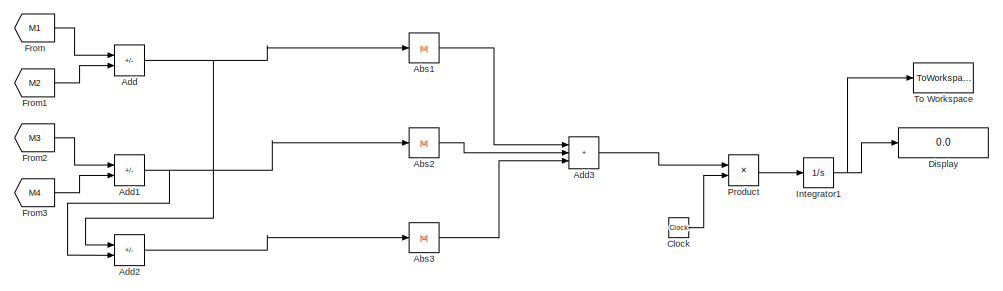
[diagram: root canvas - part 1/2, top right region]
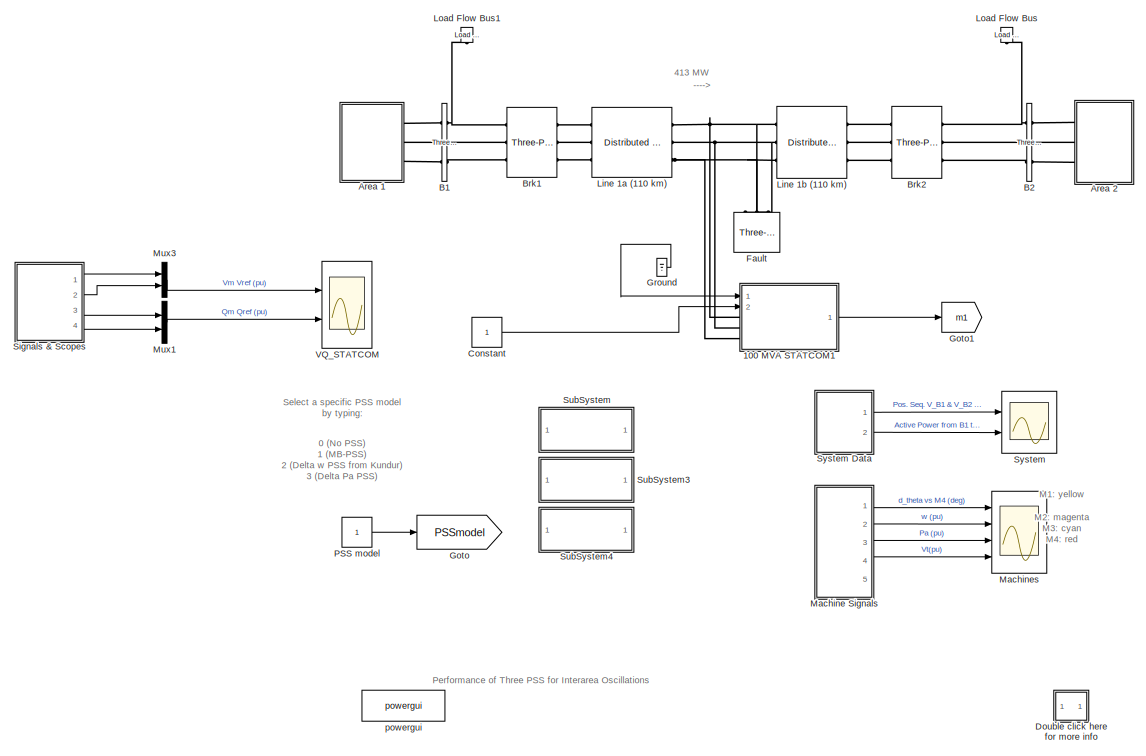
[diagram: root canvas - part 2/2, bottom left region]
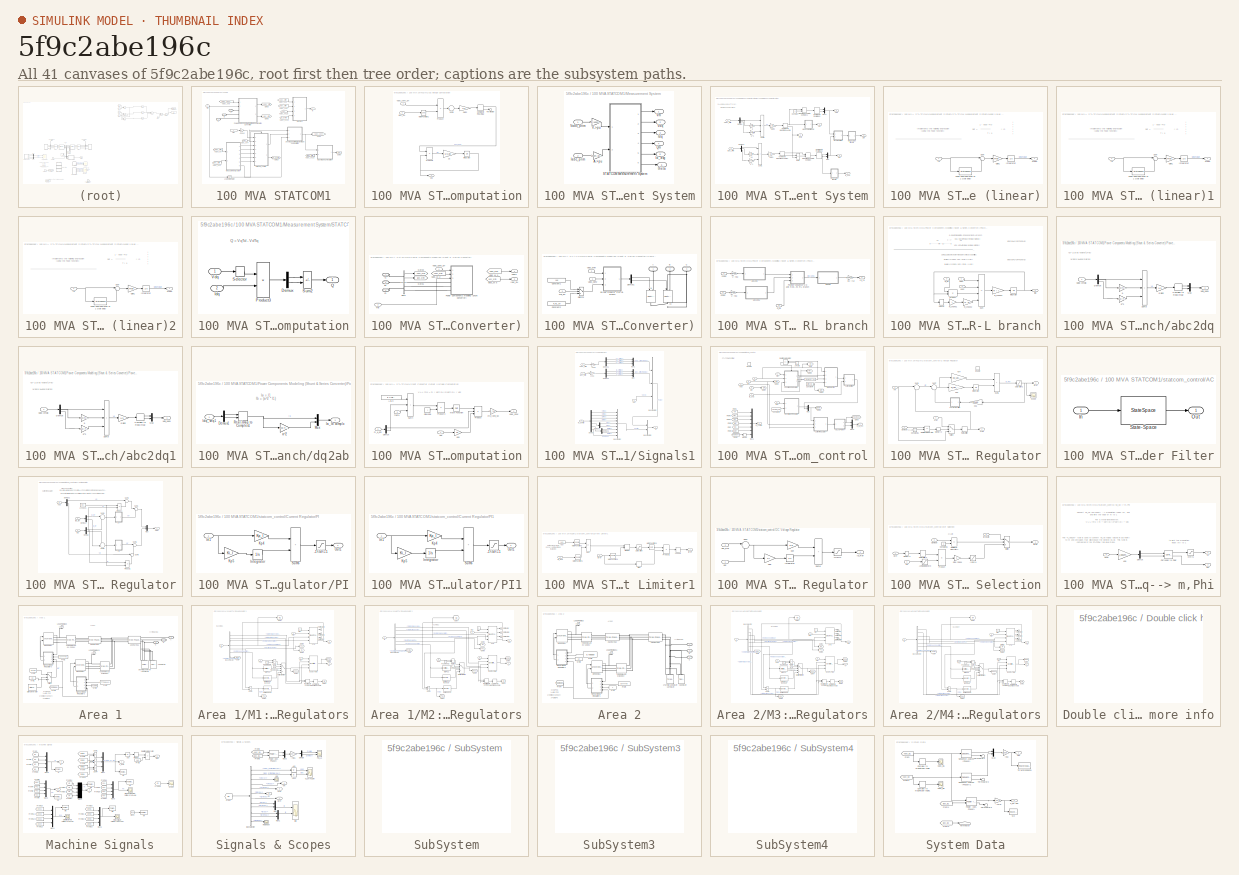
[diagram: thumbnail index - all 41 canvases of the model, root first then tree order]
MODEL slx_5f9c2abe196c
KIND model
CONFIG AbsTol = auto
CONFIG EnableMultiTasking = on
CONFIG FixedStep = auto
CONFIG MaxStep = 1/60
CONFIG MinStep = auto
CONFIG RelTol = 1e-4
CONFIG SampleTimeConstraint = Unconstrained
CONFIG SolverName = ode23tb
CONFIG StartTime = 0.0
CONFIG StopTime = 10
BLOCK [Reference]  Brk2  REF=spsThreePhaseBreakerLib/Three-Phase Breaker
  AttributesFormatString = \n
  Ports = [0, 0, 0, 0, 0, 3, 3]
  SourceBlock = spsThreePhaseBreakerLib/Three-Phase Breaker
  SourceProductBaseCode = PS
  SourceType = Three-Phase Breaker
BLOCK [SubSystem] 100 MVA STATCOM1
  AncestorBlock = factslib/Power-Electronics Based\nFACTS/Static Synchronous\nCompensator\n(Phasor Type)
  CloseFcn = sps_rtmsupport('CloseFcn',gcbh);
  Commented = on
  CopyFcn = sps_rtmsupport('CopyFcn',gcbh);
  DeleteFcn = sps_rtmsupport('DeleteFcn',gcbh);
  DialogController = POWERSYS.PowerSysDialog
  LoadFcn = sps_rtmsupport('LoadFcn',gcbh);
  ModelCloseFcn = sps_rtmsupport('ModelCloseFcn',gcbh);
  NameChangeFcn = sps_rtmsupport('NameChangeFcn',gcbh);
  OpenFcn = sps_rtmsupport('OpenFcn',gcbh, [7 9]);
  Ports = [2, 1, 0, 0, 0, 3]
  PostSaveFcn = sps_rtmsupport('PostSaveFcn',gcbh);
  PreCopyFcn = sps_rtmsupport('PreCopyFcn',gcbh);
  PreDeleteFcn = sps_rtmsupport('PreDeleteFcn',gcbh);
  PreSaveFcn = sps_rtmsupport('PreSaveFcn',gcbh);
  RequestExecContextInheritance = off
  StartFcn = sps_rtmsupport('StartFcn',gcbh);
  StopFcn = sps_rtmsupport('StopFcn',gcbh);
  UndoDeleteFcn = sps_rtmsupport('UndoDeleteFcn',gcbh);
BLOCK [PMIOPort] 100 MVA STATCOM1/A 
  Side = Left
BLOCK [Gain] 100 MVA STATCOM1/A->pu 2
  OutDataTypeStr = Inherit: Same as input
  ParamDataTypeStr = Inherit: Same as input
  SampleTime = 0
  SaturateOnIntegerOverflow = on
BLOCK [PMIOPort] 100 MVA STATCOM1/B
  Port = 2
  Side = Left
BLOCK [PMIOPort] 100 MVA STATCOM1/C
  Port = 3
  Side = Left
BLOCK [SubSystem] 100 MVA STATCOM1/DC Voltage Computation
  Ports = [2, 1]
  RequestExecContextInheritance = off
BLOCK [Gain] 100 MVA STATCOM1/DC Voltage Computation/1//C
  Gain = 1/C_DC
  OutDataTypeStr = Inherit: Same as input
  ParamDataTypeStr = Inherit: Same as input
  SaturateOnIntegerOverflow = on
BLOCK [ComplexToRealImag] 100 MVA STATCOM1/DC Voltage Computation/Complex to Real-Imag
  Ports = [1, 2]
BLOCK [Gain] 100 MVA STATCOM1/DC Voltage Computation/Gain2
  Gain = 1/2
  OutDataTypeStr = Inherit: Same as input
  ParamDataTypeStr = Inherit: Same as input
  SaturateOnIntegerOverflow = on
BLOCK [Inport] 100 MVA STATCOM1/DC Voltage Computation/Iabc_SH
  Port = 2
BLOCK [Integrator] 100 MVA STATCOM1/DC Voltage Computation/Integrator
  InitialCondition = VnomDC
  LimitOutput = on
  LowerSaturationLimit = 1e-6
  Ports = [1, 1]
  UpperSaturationLimit = 1000000
BLOCK [Math] 100 MVA STATCOM1/DC Voltage Computation/Math Function1
  Operator = conj
  Ports = [1, 1]
  SignedPower = on
BLOCK [Product] 100 MVA STATCOM1/DC Voltage Computation/Product
  OutDataTypeStr = Inherit: Same as first input
  Ports = [2, 1]
  SaturateOnIntegerOverflow = on
BLOCK [Product] 100 MVA STATCOM1/DC Voltage Computation/Product2
  InputSameDT = on
  Inputs = */
  OutDataTypeStr = Inherit: Same as first input
  Ports = [2, 1]
  SaturateOnIntegerOverflow = on
BLOCK [Sum] 100 MVA STATCOM1/DC Voltage Computation/Sum3
  InputSameDT = on
  Inputs = 1
  OutDataTypeStr = Inherit: Same as first input
  Ports = [1, 1]
  SaturateOnIntegerOverflow = on
BLOCK [Terminator] 100 MVA STATCOM1/DC Voltage Computation/Terminator
BLOCK [Inport] 100 MVA STATCOM1/DC Voltage Computation/Vabc_conv_SH
BLOCK [Outport] 100 MVA STATCOM1/DC Voltage Computation/Vdc
  VectorParamsAs1DForOutWhenUnconnected = off
BLOCK [Goto] 100 MVA STATCOM1/Goto2
  GotoTag = m_Control
BLOCK [Goto] 100 MVA STATCOM1/Goto3
  GotoTag = Vabc_prim
BLOCK [Goto] 100 MVA STATCOM1/Goto5
  GotoTag = Iabc_prim
BLOCK [Goto] 100 MVA STATCOM1/Goto8
  GotoTag = Vabc_Conv
BLOCK [Goto] 100 MVA STATCOM1/Goto9
  GotoTag = Vdc
BLOCK [Logic] 100 MVA STATCOM1/Logical Operator
  AllPortsSameDT = off
  Operator = NOT
  OutDataTypeStr = float('double')
  Ports = [1, 1]
  SampleTime = 0
BLOCK [SubSystem] 100 MVA STATCOM1/Measurement System
  Ports = [2, 6]
  RequestExecContextInheritance = off
BLOCK [Gain] 100 MVA STATCOM1/Measurement System/A->pu 
  Gain = Vnom_SH*sqrt(3)/sqrt(2)/Pnom_SH
  OutDataTypeStr = Inherit: Same as input
  ParamDataTypeStr = Inherit: Same as input
  SaturateOnIntegerOverflow = on
BLOCK [Inport] 100 MVA STATCOM1/Measurement System/Iabc_prim
  Port = 2
  PortDimensions = 3
  SampleTime = 0
BLOCK [Outport] 100 MVA STATCOM1/Measurement System/Id_avg
  Port = 5
  VectorParamsAs1DForOutWhenUnconnected = off
BLOCK [Outport] 100 MVA STATCOM1/Measurement System/Idq
  Port = 3
  VectorParamsAs1DForOutWhenUnconnected = off
BLOCK [Outport] 100 MVA STATCOM1/Measurement System/Qm
  Port = 4
  VectorParamsAs1DForOutWhenUnconnected = off
BLOCK [SubSystem] 100 MVA STATCOM1/Measurement System/STATCOM Measurement System
  Ports = [2, 6]
  RequestExecContextInheritance = off
BLOCK [ComplexToMagnitudeAngle] 100 MVA STATCOM1/Measurement System/STATCOM Measurement System/Complex to Magnitude-Angle
  Ports = [1, 2]
BLOCK [ComplexToMagnitudeAngle] 100 MVA STATCOM1/Measurement System/STATCOM Measurement System/Complex to Magnitude-Angle1
  Ports = [1, 2]
BLOCK [ComplexToRealImag] 100 MVA STATCOM1/Measurement System/STATCOM Measurement System/Complex to Real-Imag1
  Ports = [1, 2]
BLOCK [ComplexToRealImag] 100 MVA STATCOM1/Measurement System/STATCOM Measurement System/Complex to Real-Imag2
  Ports = [1, 2]
BLOCK [Constant] 100 MVA STATCOM1/Measurement System/STATCOM Measurement System/Constant
  Value = 0
BLOCK [Demux] 100 MVA STATCOM1/Measurement System/STATCOM Measurement System/Demux
  DisplayOption = none
  Outputs = 3
  Ports = [1, 3]
BLOCK [Demux] 100 MVA STATCOM1/Measurement System/STATCOM Measurement System/Demux1
  DisplayOption = none
  Outputs = 3
  Ports = [1, 3]
BLOCK [Gain] 100 MVA STATCOM1/Measurement System/STATCOM Measurement System/Gain1
  Gain = 1/3
  OutDataTypeStr = Inherit: Same as input
  ParamDataTypeStr = Inherit: Same as input
  SaturateOnIntegerOverflow = on
BLOCK [Gain] 100 MVA STATCOM1/Measurement System/STATCOM Measurement System/Gain2
  Gain = 1/3
  OutDataTypeStr = Inherit: Same as input
  ParamDataTypeStr = Inherit: Same as input
  SaturateOnIntegerOverflow = on
BLOCK [Inport] 100 MVA STATCOM1/Measurement System/STATCOM Measurement System/Iabc_Prim
  Port = 2
BLOCK [Outport] 100 MVA STATCOM1/Measurement System/STATCOM Measurement System/Id_avg
  Port = 5
  VectorParamsAs1DForOutWhenUnconnected = off
BLOCK [Outport] 100 MVA STATCOM1/Measurement System/STATCOM Measurement System/Idq
  Port = 3
  VectorParamsAs1DForOutWhenUnconnected = off
BLOCK [MagnitudeAngleToComplex] 100 MVA STATCOM1/Measurement System/STATCOM Measurement System/Magnitude-Angle to Complex
  Ports = [2, 1]
BLOCK [MagnitudeAngleToComplex] 100 MVA STATCOM1/Measurement System/STATCOM Measurement System/Magnitude-Angle to Complex1
  Ports = [2, 1]
BLOCK [SubSystem] 100 MVA STATCOM1/Measurement System/STATCOM Measurement System/Mean Value (linear)
  DialogController = POWERSYS.PowerSysDialog
  Ports = [1, 1]
  RequestExecContextInheritance = off
BLOCK [Gain] 100 MVA STATCOM1/Measurement System/STATCOM Measurement System/Mean Value (linear)/Gain1
  Gain = Freq
  OutDataTypeStr = Inherit: Same as input
  ParamDataTypeStr = Inherit: Same as input
  SaturateOnIntegerOverflow = on
BLOCK [Inport] 100 MVA STATCOM1/Measurement System/STATCOM Measurement System/Mean Value (linear)/In
BLOCK [Integrator] 100 MVA STATCOM1/Measurement System/STATCOM Measurement System/Mean Value (linear)/Integrator
  InitialCondition = Vinit
  Ports = [1, 1]
BLOCK [Outport] 100 MVA STATCOM1/Measurement System/STATCOM Measurement System/Mean Value (linear)/Mean
  VectorParamsAs1DForOutWhenUnconnected = off
BLOCK [StateSpace] 100 MVA STATCOM1/Measurement System/STATCOM Measurement System/Mean Value (linear)/Pade approximation of 1 cycle delay
  A = Ac
  B = Bc
  C = Cc
  D = Dc
  InitialCondition = x0c
  Ports = [1, 1]
BLOCK [Sum] 100 MVA STATCOM1/Measurement System/STATCOM Measurement System/Mean Value (linear)/Sum
  Inputs = |+-
  Ports = [2, 1]
  SaturateOnIntegerOverflow = on
BLOCK [SubSystem] 100 MVA STATCOM1/Measurement System/STATCOM Measurement System/Mean Value (linear)1
  DialogController = POWERSYS.PowerSysDialog
  Ports = [1, 1]
  RequestExecContextInheritance = off
BLOCK [Gain] 100 MVA STATCOM1/Measurement System/STATCOM Measurement System/Mean Value (linear)1/Gain1
  Gain = Freq
  OutDataTypeStr = Inherit: Same as input
  ParamDataTypeStr = Inherit: Same as input
  SaturateOnIntegerOverflow = on
BLOCK [Inport] 100 MVA STATCOM1/Measurement System/STATCOM Measurement System/Mean Value (linear)1/In
BLOCK [Integrator] 100 MVA STATCOM1/Measurement System/STATCOM Measurement System/Mean Value (linear)1/Integrator
  InitialCondition = Vinit
  Ports = [1, 1]
BLOCK [Outport] 100 MVA STATCOM1/Measurement System/STATCOM Measurement System/Mean Value (linear)1/Mean
  VectorParamsAs1DForOutWhenUnconnected = off
BLOCK [StateSpace] 100 MVA STATCOM1/Measurement System/STATCOM Measurement System/Mean Value (linear)1/Pade approximation of 1 cycle delay
  A = Ac
  B = Bc
  C = Cc
  D = Dc
  InitialCondition = x0c
  Ports = [1, 1]
BLOCK [Sum] 100 MVA STATCOM1/Measurement System/STATCOM Measurement System/Mean Value (linear)1/Sum
  Inputs = |+-
  Ports = [2, 1]
  SaturateOnIntegerOverflow = on
BLOCK [SubSystem] 100 MVA STATCOM1/Measurement System/STATCOM Measurement System/Mean Value (linear)2
  DialogController = POWERSYS.PowerSysDialog
  Ports = [1, 1]
  RequestExecContextInheritance = off
BLOCK [Gain] 100 MVA STATCOM1/Measurement System/STATCOM Measurement System/Mean Value (linear)2/Gain1
  Gain = Freq
  OutDataTypeStr = Inherit: Same as input
  ParamDataTypeStr = Inherit: Same as input
  SaturateOnIntegerOverflow = on
BLOCK [Inport] 100 MVA STATCOM1/Measurement System/STATCOM Measurement System/Mean Value (linear)2/In
BLOCK [Integrator] 100 MVA STATCOM1/Measurement System/STATCOM Measurement System/Mean Value (linear)2/Integrator
  InitialCondition = Vinit
  Ports = [1, 1]
BLOCK [Outport] 100 MVA STATCOM1/Measurement System/STATCOM Measurement System/Mean Value (linear)2/Mean
  VectorParamsAs1DForOutWhenUnconnected = off
BLOCK [StateSpace] 100 MVA STATCOM1/Measurement System/STATCOM Measurement System/Mean Value (linear)2/Pade approximation of 1 cycle delay
  A = Ac
  B = Bc
  C = Cc
  D = Dc
  InitialCondition = x0c
  Ports = [1, 1]
BLOCK [Sum] 100 MVA STATCOM1/Measurement System/STATCOM Measurement System/Mean Value (linear)2/Sum
  Inputs = |+-
  Ports = [2, 1]
  SaturateOnIntegerOverflow = on
BLOCK [Mux] 100 MVA STATCOM1/Measurement System/STATCOM Measurement System/Mux
  DisplayOption = bar
  Inputs = 2
  Ports = [2, 1]
BLOCK [Mux] 100 MVA STATCOM1/Measurement System/STATCOM Measurement System/Mux2
  DisplayOption = bar
  Inputs = 2
  Ports = [2, 1]
BLOCK [SubSystem] 100 MVA STATCOM1/Measurement System/STATCOM Measurement System/Q computation
  Ports = [2, 1]
  RequestExecContextInheritance = off
BLOCK [Demux] 100 MVA STATCOM1/Measurement System/STATCOM Measurement System/Q computation/Demux
  DisplayOption = none
  Outputs = 2
  Ports = [1, 2]
BLOCK [Inport] 100 MVA STATCOM1/Measurement System/STATCOM Measurement System/Q computation/Idq
  Port = 2
BLOCK [Product] 100 MVA STATCOM1/Measurement System/STATCOM Measurement System/Q computation/Product3
  InputSameDT = on
  OutDataTypeStr = Inherit: Same as first input
  Ports = [2, 1]
  SaturateOnIntegerOverflow = on
BLOCK [Outport] 100 MVA STATCOM1/Measurement System/STATCOM Measurement System/Q computation/Q
  VectorParamsAs1DForOutWhenUnconnected = off
BLOCK [Selector] 100 MVA STATCOM1/Measurement System/STATCOM Measurement System/Q computation/Selector
  IndexOptions = Index vector (dialog)
  Indices = [2 1]
  InputPortWidth = 2
  OutputSizes = 1
  Ports = [1, 1]
BLOCK [Sum] 100 MVA STATCOM1/Measurement System/STATCOM Measurement System/Q computation/Sum2
  IconShape = rectangular
  InputSameDT = on
  Inputs = +-
  OutDataTypeStr = Inherit: Same as first input
  Ports = [2, 1]
  SaturateOnIntegerOverflow = on
BLOCK [Inport] 100 MVA STATCOM1/Measurement System/STATCOM Measurement System/Q computation/Vdq
BLOCK [Outport] 100 MVA STATCOM1/Measurement System/STATCOM Measurement System/Qm
  Port = 4
  VectorParamsAs1DForOutWhenUnconnected = off
BLOCK [Sum] 100 MVA STATCOM1/Measurement System/STATCOM Measurement System/Sum
  IconShape = rectangular
  Inputs = +-
  Ports = [2, 1]
  SaturateOnIntegerOverflow = on
BLOCK [Sum] 100 MVA STATCOM1/Measurement System/STATCOM Measurement System/Sum1
  IconShape = rectangular
  InputSameDT = on
  Inputs = +++
  OutDataTypeStr = Inherit: Same as first input
  Ports = [3, 1]
  SaturateOnIntegerOverflow = on
BLOCK [Sum] 100 MVA STATCOM1/Measurement System/STATCOM Measurement System/Sum3
  IconShape = rectangular
  InputSameDT = on
  Inputs = +++
  OutDataTypeStr = Inherit: Same as first input
  Ports = [3, 1]
  SaturateOnIntegerOverflow = on
BLOCK [Inport] 100 MVA STATCOM1/Measurement System/STATCOM Measurement System/Vabc_Prim
BLOCK [Outport] 100 MVA STATCOM1/Measurement System/STATCOM Measurement System/Vdq
  Port = 2
  VectorParamsAs1DForOutWhenUnconnected = off
BLOCK [Outport] 100 MVA STATCOM1/Measurement System/STATCOM Measurement System/Vm
  VectorParamsAs1DForOutWhenUnconnected = off
BLOCK [Gain] 100 MVA STATCOM1/Measurement System/STATCOM Measurement System/a
  Gain = exp(j*2*pi/3)
  OutDataTypeStr = Inherit: Same as input
  ParamDataTypeStr = Inherit: Same as input
  SaturateOnIntegerOverflow = on
BLOCK [Gain] 100 MVA STATCOM1/Measurement System/STATCOM Measurement System/a1
  Gain = exp(j*2*pi/3)
  OutDataTypeStr = Inherit: Same as input
  ParamDataTypeStr = Inherit: Same as input
  SaturateOnIntegerOverflow = on
BLOCK [Gain] 100 MVA STATCOM1/Measurement System/STATCOM Measurement System/a^1
  Gain = exp(-j*2*pi/3)
  OutDataTypeStr = Inherit: Same as input
  ParamDataTypeStr = Inherit: Same as input
  SaturateOnIntegerOverflow = on
BLOCK [Gain] 100 MVA STATCOM1/Measurement System/STATCOM Measurement System/a^2
  Gain = exp(-j*2*pi/3)
  OutDataTypeStr = Inherit: Same as input
  ParamDataTypeStr = Inherit: Same as input
  SaturateOnIntegerOverflow = on
BLOCK [Outport] 100 MVA STATCOM1/Measurement System/STATCOM Measurement System/theta
  Port = 6
  VectorParamsAs1DForOutWhenUnconnected = off
BLOCK [Gain] 100 MVA STATCOM1/Measurement System/V->pu 
  Gain = 1/(Vnom_SH*sqrt(2)/sqrt(3))
  OutDataTypeStr = Inherit: Same as input
  ParamDataTypeStr = Inherit: Same as input
  SaturateOnIntegerOverflow = on
BLOCK [Inport] 100 MVA STATCOM1/Measurement System/Vabc_prim
  PortDimensions = 3
  SampleTime = 0
BLOCK [Outport] 100 MVA STATCOM1/Measurement System/Vdq
  Port = 2
  VectorParamsAs1DForOutWhenUnconnected = off
BLOCK [Outport] 100 MVA STATCOM1/Measurement System/Vm
  VectorParamsAs1DForOutWhenUnconnected = off
BLOCK [Outport] 100 MVA STATCOM1/Measurement System/theta
  Port = 6
  VectorParamsAs1DForOutWhenUnconnected = off
BLOCK [SubSystem] 100 MVA STATCOM1/Power Components Modeling (Shunt & Series Converter)
  Ports = [2, 2, 0, 0, 0, 3]
  RequestExecContextInheritance = off
BLOCK [PMIOPort] 100 MVA STATCOM1/Power Components Modeling (Shunt & Series Converter)/A1 
  Side = Left
BLOCK [PMIOPort] 100 MVA STATCOM1/Power Components Modeling (Shunt & Series Converter)/B1
  Port = 2
  Side = Left
BLOCK [Reference] 100 MVA STATCOM1/Power Components Modeling (Shunt & Series Converter)/Bus1  REF=spsThreePhaseVIMeasurementLib/Three-Phase
V-I Measurement
  Ports = [0, 2, 0, 0, 0, 3, 3]
  SourceBlock = spsThreePhaseVIMeasurementLib/Three-Phase\nV-I Measurement
  SourceProductBaseCode = PS
  SourceType = Three-Phase VI Measurement
BLOCK [PMIOPort] 100 MVA STATCOM1/Power Components Modeling (Shunt & Series Converter)/C1
  Port = 3
  Side = Left
BLOCK [Goto] 100 MVA STATCOM1/Power Components Modeling (Shunt & Series Converter)/Goto1
  GotoTag = Iabc_prim
BLOCK [Goto] 100 MVA STATCOM1/Power Components Modeling (Shunt & Series Converter)/Goto3
  GotoTag = Vabc_prim
BLOCK [Outport] 100 MVA STATCOM1/Power Components Modeling (Shunt & Series Converter)/Iabc_SH
  Port = 2
  VectorParamsAs1DForOutWhenUnconnected = off
BLOCK [SubSystem] 100 MVA STATCOM1/Power Components Modeling (Shunt & Series Converter)/Power Components modeling (Shunt Converter)
  Ports = [3, 0, 0, 0, 0, 3]
  RequestExecContextInheritance = off
BLOCK [PMIOPort] 100 MVA STATCOM1/Power Components Modeling (Shunt & Series Converter)/Power Components modeling (Shunt Converter)/A
  NameLocation = left
  Side = Left
BLOCK [PMIOPort] 100 MVA STATCOM1/Power Components Modeling (Shunt & Series Converter)/Power Components modeling (Shunt Converter)/B
  NameLocation = left
  Port = 2
  Side = Left
BLOCK [PMIOPort] 100 MVA STATCOM1/Power Components Modeling (Shunt & Series Converter)/Power Components modeling (Shunt Converter)/C
  NameLocation = left
  Port = 3
  Side = Left
BLOCK [Constant] 100 MVA STATCOM1/Power Components Modeling (Shunt & Series Converter)/Power Components modeling (Shunt Converter)/Constant1
  Value = 1e6
BLOCK [Constant] 100 MVA STATCOM1/Power Components Modeling (Shunt & Series Converter)/Power Components modeling (Shunt Converter)/Constant2
  Value = R_RL_SH
BLOCK [Demux] 100 MVA STATCOM1/Power Components Modeling (Shunt & Series Converter)/Power Components modeling (Shunt Converter)/Demux1
  DisplayOption = none
  Outputs = 2
  Ports = [1, 2]
BLOCK [Reference] 100 MVA STATCOM1/Power Components Modeling (Shunt & Series Converter)/Power Components modeling (Shunt Converter)/Ia  REF=spsControlledCurrentSourceLib/Controlled Current Source
  Description = source block
  NameLocation = left
  Ports = [1, 0, 0, 0, 0, 1, 1]
  SourceBlock = spsControlledCurrentSourceLib/Controlled Current Source
  SourceProductBaseCode = PS
  SourceType = Controlled Current Source
BLOCK [Reference] 100 MVA STATCOM1/Power Components Modeling (Shunt & Series Converter)/Power Components modeling (Shunt Converter)/Ib  REF=spsControlledCurrentSourceLib/Controlled Current Source
  Description = source block
  NameLocation = left
  Ports = [1, 0, 0, 0, 0, 1, 1]
  SourceBlock = spsControlledCurrentSourceLib/Controlled Current Source
  SourceProductBaseCode = PS
  SourceType = Controlled Current Source
BLOCK [Switch] 100 MVA STATCOM1/Power Components Modeling (Shunt & Series Converter)/Power Components modeling (Shunt Converter)/Switch3
  InputSameDT = off
  Threshold = 0.5
BLOCK [Inport] 100 MVA STATCOM1/Power Components Modeling (Shunt & Series Converter)/Power Components modeling (Shunt Converter)/Trip_SH
  Port = 3
  PortDimensions = 1
BLOCK [Inport] 100 MVA STATCOM1/Power Components Modeling (Shunt & Series Converter)/Power Components modeling (Shunt Converter)/Vabc_Conv
  PortDimensions = 3
BLOCK [Inport] 100 MVA STATCOM1/Power Components Modeling (Shunt & Series Converter)/Power Components modeling (Shunt Converter)/Vabc_prim
  Port = 2
  PortDimensions = 3
BLOCK [SubSystem] 100 MVA STATCOM1/Power Components Modeling (Shunt & Series Converter)/Power Components modeling (Shunt Converter)/dq-axis model of 3-ph RL branch
  Ports = [3, 1]
  RequestExecContextInheritance = off
BLOCK [Outport] 100 MVA STATCOM1/Power Components Modeling (Shunt & Series Converter)/Power Components modeling (Shunt Converter)/dq-axis model of 3-ph RL branch/Ia_Ib
  VectorParamsAs1DForOutWhenUnconnected = off
BLOCK [SubSystem] 100 MVA STATCOM1/Power Components Modeling (Shunt & Series Converter)/Power Components modeling (Shunt Converter)/dq-axis model of 3-ph RL branch/Positive-sequence d-q axis model of a 3-phase series R-L branch
  Ports = [3, 1]
  RequestExecContextInheritance = off
BLOCK [Integrator] 100 MVA STATCOM1/Power Components Modeling (Shunt & Series Converter)/Power Components modeling (Shunt Converter)/dq-axis model of 3-ph RL branch/Positive-sequence d-q axis model of a 3-phase series R-L branch/Integrator
  InitialCondition = [MagIinit_SH*cos(PhaIinit_SH*pi/180)  MagIinit_SH*sin(PhaIinit_SH*pi/180)]
  Ports = [1, 1]
BLOCK [Product] 100 MVA STATCOM1/Power Components Modeling (Shunt & Series Converter)/Power Components modeling (Shunt Converter)/dq-axis model of 3-ph RL branch/Positive-sequence d-q axis model of a 3-phase series R-L branch/Product
  OutDataTypeStr = Inherit: Same as first input
  Ports = [2, 1]
  SaturateOnIntegerOverflow = on
BLOCK [Inport] 100 MVA STATCOM1/Power Components Modeling (Shunt & Series Converter)/Power Components modeling (Shunt Converter)/dq-axis model of 3-ph RL branch/Positive-sequence d-q axis model of a 3-phase series R-L branch/R_RL
  Port = 3
BLOCK [Gain] 100 MVA STATCOM1/Power Components Modeling (Shunt & Series Converter)/Power Components modeling (Shunt Converter)/dq-axis model of 3-ph RL branch/Positive-sequence d-q axis model of a 3-phase series R-L branch/R_choke1
  Gain = L
  OutDataTypeStr = Inherit: Same as input
  ParamDataTypeStr = Inherit: Same as input
  SaturateOnIntegerOverflow = on
BLOCK [Gain] 100 MVA STATCOM1/Power Components Modeling (Shunt & Series Converter)/Power Components modeling (Shunt Converter)/dq-axis model of 3-ph RL branch/Positive-sequence d-q axis model of a 3-phase series R-L branch/R_choke2
  Gain = [1 -1]
  OutDataTypeStr = Inherit: Same as input
  ParamDataTypeStr = Inherit: Same as input
  SaturateOnIntegerOverflow = on
BLOCK [Gain] 100 MVA STATCOM1/Power Components Modeling (Shunt & Series Converter)/Power Components modeling (Shunt Converter)/dq-axis model of 3-ph RL branch/Positive-sequence d-q axis model of a 3-phase series R-L branch/R_choke3
  Gain = w / L
  OutDataTypeStr = Inherit: Same as input
  ParamDataTypeStr = Inherit: Same as input
  SaturateOnIntegerOverflow = on
BLOCK [Selector] 100 MVA STATCOM1/Power Components Modeling (Shunt & Series Converter)/Power Components modeling (Shunt Converter)/dq-axis model of 3-ph RL branch/Positive-sequence d-q axis model of a 3-phase series R-L branch/Selector
  IndexOptions = Index vector (dialog)
  Indices = [2 1]
  InputPortWidth = 2
  OutputSizes = 1
  Ports = [1, 1]
BLOCK [Sum] 100 MVA STATCOM1/Power Components Modeling (Shunt & Series Converter)/Power Components modeling (Shunt Converter)/dq-axis model of 3-ph RL branch/Positive-sequence d-q axis model of a 3-phase series R-L branch/Sum
  IconShape = rectangular
  Inputs = +--+
  Ports = [4, 1]
  SaturateOnIntegerOverflow = on
BLOCK [Inport] 100 MVA STATCOM1/Power Components Modeling (Shunt & Series Converter)/Power Components modeling (Shunt Converter)/dq-axis model of 3-ph RL branch/Positive-sequence d-q axis model of a 3-phase series R-L branch/Vdq1
BLOCK [Inport] 100 MVA STATCOM1/Power Components Modeling (Shunt & Series Converter)/Power Components modeling (Shunt Converter)/dq-axis model of 3-ph RL branch/Positive-sequence d-q axis model of a 3-phase series R-L branch/Vdq2
  Port = 2
BLOCK [Outport] 100 MVA STATCOM1/Power Components Modeling (Shunt & Series Converter)/Power Components modeling (Shunt Converter)/dq-axis model of 3-ph RL branch/Positive-sequence d-q axis model of a 3-phase series R-L branch/idIq
  VectorParamsAs1DForOutWhenUnconnected = off
BLOCK [Inport] 100 MVA STATCOM1/Power Components Modeling (Shunt & Series Converter)/Power Components modeling (Shunt Converter)/dq-axis model of 3-ph RL branch/R_RL
  Port = 3
BLOCK [Gain] 100 MVA STATCOM1/Power Components Modeling (Shunt & Series Converter)/Power Components modeling (Shunt Converter)/dq-axis model of 3-ph RL branch/V-->pu
  Gain = 1/(Vnom*sqrt(2)/sqrt(3))
  OutDataTypeStr = Inherit: Same as input
  ParamDataTypeStr = Inherit: Same as input
  SaturateOnIntegerOverflow = on
BLOCK [Gain] 100 MVA STATCOM1/Power Components Modeling (Shunt & Series Converter)/Power Components modeling (Shunt Converter)/dq-axis model of 3-ph RL branch/V-->pu 
  Gain = 1/(Vnom*sqrt(2)/sqrt(3))
  OutDataTypeStr = Inherit: Same as input
  ParamDataTypeStr = Inherit: Same as input
  SaturateOnIntegerOverflow = on
BLOCK [Inport] 100 MVA STATCOM1/Power Components Modeling (Shunt & Series Converter)/Power Components modeling (Shunt Converter)/dq-axis model of 3-ph RL branch/V1abc
BLOCK [Inport] 100 MVA STATCOM1/Power Components Modeling (Shunt & Series Converter)/Power Components modeling (Shunt Converter)/dq-axis model of 3-ph RL branch/V2abc
  Port = 2
BLOCK [SubSystem] 100 MVA STATCOM1/Power Components Modeling (Shunt & Series Converter)/Power Components modeling (Shunt Converter)/dq-axis model of 3-ph RL branch/abc2dq
  Ports = [1, 1]
  RequestExecContextInheritance = off
BLOCK [ComplexToRealImag] 100 MVA STATCOM1/Power Components Modeling (Shunt & Series Converter)/Power Components modeling (Shunt Converter)/dq-axis model of 3-ph RL branch/abc2dq/Complex to Real-Imag
  Ports = [1, 2]
BLOCK [Demux] 100 MVA STATCOM1/Power Components Modeling (Shunt & Series Converter)/Power Components modeling (Shunt Converter)/dq-axis model of 3-ph RL branch/abc2dq/Demux
  DisplayOption = none
  Outputs = 3
  Ports = [1, 3]
BLOCK [Gain] 100 MVA STATCOM1/Power Components Modeling (Shunt & Series Converter)/Power Components modeling (Shunt Converter)/dq-axis model of 3-ph RL branch/abc2dq/Gain2
  Gain = 1/3
  OutDataTypeStr = Inherit: Same as input
  ParamDataTypeStr = Inherit: Same as input
  SaturateOnIntegerOverflow = on
BLOCK [Mux] 100 MVA STATCOM1/Power Components Modeling (Shunt & Series Converter)/Power Components modeling (Shunt Converter)/dq-axis model of 3-ph RL branch/abc2dq/Mux
  DisplayOption = bar
  Inputs = 2
  Ports = [2, 1]
BLOCK [Sum] 100 MVA STATCOM1/Power Components Modeling (Shunt & Series Converter)/Power Components modeling (Shunt Converter)/dq-axis model of 3-ph RL branch/abc2dq/Sum3
  IconShape = rectangular
  InputSameDT = on
  Inputs = +++
  OutDataTypeStr = Inherit: Same as first input
  Ports = [3, 1]
  SaturateOnIntegerOverflow = on
BLOCK [Inport] 100 MVA STATCOM1/Power Components Modeling (Shunt & Series Converter)/Power Components modeling (Shunt Converter)/dq-axis model of 3-ph RL branch/abc2dq/Vabc cmplx
  NameLocation = top
BLOCK [Outport] 100 MVA STATCOM1/Power Components Modeling (Shunt & Series Converter)/Power Components modeling (Shunt Converter)/dq-axis model of 3-ph RL branch/abc2dq/Vdq_seq1
  VectorParamsAs1DForOutWhenUnconnected = off
BLOCK [Gain] 100 MVA STATCOM1/Power Components Modeling (Shunt & Series Converter)/Power Components modeling (Shunt Converter)/dq-axis model of 3-ph RL branch/abc2dq/a
  Gain = exp(j*2*pi/3)
  OutDataTypeStr = Inherit: Same as input
  ParamDataTypeStr = Inherit: Same as input
  SaturateOnIntegerOverflow = on
BLOCK [Gain] 100 MVA STATCOM1/Power Components Modeling (Shunt & Series Converter)/Power Components modeling (Shunt Converter)/dq-axis model of 3-ph RL branch/abc2dq/a^2
  Gain = exp(-j*2*pi/3)
  OutDataTypeStr = Inherit: Same as input
  ParamDataTypeStr = Inherit: Same as input
  SaturateOnIntegerOverflow = on
BLOCK [SubSystem] 100 MVA STATCOM1/Power Components Modeling (Shunt & Series Converter)/Power Components modeling (Shunt Converter)/dq-axis model of 3-ph RL branch/abc2dq1
  Ports = [1, 1]
  RequestExecContextInheritance = off
BLOCK [ComplexToRealImag] 100 MVA STATCOM1/Power Components Modeling (Shunt & Series Converter)/Power Components modeling (Shunt Converter)/dq-axis model of 3-ph RL branch/abc2dq1/Complex to Real-Imag
  Ports = [1, 2]
BLOCK [Demux] 100 MVA STATCOM1/Power Components Modeling (Shunt & Series Converter)/Power Components modeling (Shunt Converter)/dq-axis model of 3-ph RL branch/abc2dq1/Demux
  DisplayOption = none
  Outputs = 3
  Ports = [1, 3]
BLOCK [Gain] 100 MVA STATCOM1/Power Components Modeling (Shunt & Series Converter)/Power Components modeling (Shunt Converter)/dq-axis model of 3-ph RL branch/abc2dq1/Gain2
  Gain = 1/3
  OutDataTypeStr = Inherit: Same as input
  ParamDataTypeStr = Inherit: Same as input
  SaturateOnIntegerOverflow = on
BLOCK [Mux] 100 MVA STATCOM1/Power Components Modeling (Shunt & Series Converter)/Power Components modeling (Shunt Converter)/dq-axis model of 3-ph RL branch/abc2dq1/Mux
  DisplayOption = bar
  Inputs = 2
  Ports = [2, 1]
BLOCK [Sum] 100 MVA STATCOM1/Power Components Modeling (Shunt & Series Converter)/Power Components modeling (Shunt Converter)/dq-axis model of 3-ph RL branch/abc2dq1/Sum3
  IconShape = rectangular
  InputSameDT = on
  Inputs = +++
  OutDataTypeStr = Inherit: Same as first input
  Ports = [3, 1]
  SaturateOnIntegerOverflow = on
BLOCK [Inport] 100 MVA STATCOM1/Power Components Modeling (Shunt & Series Converter)/Power Components modeling (Shunt Converter)/dq-axis model of 3-ph RL branch/abc2dq1/Vabc cmplx
  NameLocation = top
BLOCK [Outport] 100 MVA STATCOM1/Power Components Modeling (Shunt & Series Converter)/Power Components modeling (Shunt Converter)/dq-axis model of 3-ph RL branch/abc2dq1/Vdq_seq1
  VectorParamsAs1DForOutWhenUnconnected = off
BLOCK [Gain] 100 MVA STATCOM1/Power Components Modeling (Shunt & Series Converter)/Power Components modeling (Shunt Converter)/dq-axis model of 3-ph RL branch/abc2dq1/a
  Gain = exp(j*2*pi/3)
  OutDataTypeStr = Inherit: Same as input
  ParamDataTypeStr = Inherit: Same as input
  SaturateOnIntegerOverflow = on
BLOCK [Gain] 100 MVA STATCOM1/Power Components Modeling (Shunt & Series Converter)/Power Components modeling (Shunt Converter)/dq-axis model of 3-ph RL branch/abc2dq1/a^2
  Gain = exp(-j*2*pi/3)
  OutDataTypeStr = Inherit: Same as input
  ParamDataTypeStr = Inherit: Same as input
  SaturateOnIntegerOverflow = on
BLOCK [SubSystem] 100 MVA STATCOM1/Power Components Modeling (Shunt & Series Converter)/Power Components modeling (Shunt Converter)/dq-axis model of 3-ph RL branch/dq2ab
  Ports = [1, 1]
  RequestExecContextInheritance = off
BLOCK [Demux] 100 MVA STATCOM1/Power Components Modeling (Shunt & Series Converter)/Power Components modeling (Shunt Converter)/dq-axis model of 3-ph RL branch/dq2ab/Demux1
  DisplayOption = none
  Outputs = 2
  Ports = [1, 2]
BLOCK [Outport] 100 MVA STATCOM1/Power Components Modeling (Shunt & Series Converter)/Power Components modeling (Shunt Converter)/dq-axis model of 3-ph RL branch/dq2ab/Ia_Ib complx
  VectorParamsAs1DForOutWhenUnconnected = off
BLOCK [Inport] 100 MVA STATCOM1/Power Components Modeling (Shunt & Series Converter)/Power Components modeling (Shunt Converter)/dq-axis model of 3-ph RL branch/dq2ab/Idq_seq1
BLOCK [Mux] 100 MVA STATCOM1/Power Components Modeling (Shunt & Series Converter)/Power Components modeling (Shunt Converter)/dq-axis model of 3-ph RL branch/dq2ab/Mux
  DisplayOption = bar
  Inputs = 2
  Ports = [2, 1]
BLOCK [RealImagToComplex] 100 MVA STATCOM1/Power Components Modeling (Shunt & Series Converter)/Power Components modeling (Shunt Converter)/dq-axis model of 3-ph RL branch/dq2ab/Real-Imag to Complex1
  Ports = [2, 1]
BLOCK [Gain] 100 MVA STATCOM1/Power Components Modeling (Shunt & Series Converter)/Power Components modeling (Shunt Converter)/dq-axis model of 3-ph RL branch/dq2ab/a^2
  Gain = exp(-j*2*pi/3)
  OutDataTypeStr = Inherit: Same as input
  ParamDataTypeStr = Inherit: Same as input
  SaturateOnIntegerOverflow = on
BLOCK [Gain] 100 MVA STATCOM1/Power Components Modeling (Shunt & Series Converter)/Power Components modeling (Shunt Converter)/dq-axis model of 3-ph RL branch/pu-->A2
  Gain = Pnom*sqrt(2)/(sqrt(3)*Vnom)
  OutDataTypeStr = Inherit: Same as input
  ParamDataTypeStr = Inherit: Same as input
  SaturateOnIntegerOverflow = on
BLOCK [Inport] 100 MVA STATCOM1/Power Components Modeling (Shunt & Series Converter)/Trip
  Port = 2
  PortDimensions = 1
BLOCK [Outport] 100 MVA STATCOM1/Power Components Modeling (Shunt & Series Converter)/Vabc1
  VectorParamsAs1DForOutWhenUnconnected = off
BLOCK [Inport] 100 MVA STATCOM1/Power Components Modeling (Shunt & Series Converter)/Vabc_Conv_SH
  NameLocation = top
  PortDimensions = 3
BLOCK [From] 100 MVA STATCOM1/Power Components Modeling (Shunt & Series Converter)/Vabc_xx 2
  GotoTag = Vabc_prim
BLOCK [From] 100 MVA STATCOM1/Power Components Modeling (Shunt & Series Converter)/Vabc_xx 3
  GotoTag = Vabc_prim
BLOCK [From] 100 MVA STATCOM1/Power Components Modeling (Shunt & Series Converter)/Vabc_xx 5
  GotoTag = Iabc_prim
BLOCK [SubSystem] 100 MVA STATCOM1/Shunt Converter Output Voltage Computation
  Ports = [3, 1]
  RequestExecContextInheritance = off
BLOCK [Constant] 100 MVA STATCOM1/Shunt Converter Output Voltage Computation/A,B,C
  NameLocation = top
  Value = [0 -2*pi/3 2*pi/3]
BLOCK [Demux] 100 MVA STATCOM1/Shunt Converter Output Voltage Computation/Demux
  DisplayOption = none
  Outputs = 2
  Ports = [1, 2]
BLOCK [Gain] 100 MVA STATCOM1/Shunt Converter Output Voltage Computation/Kp5
  Gain = 0.5
  OutDataTypeStr = Inherit: Same as input
  ParamDataTypeStr = Inherit: Same as input
  SaturateOnIntegerOverflow = on
BLOCK [Math] 100 MVA STATCOM1/Shunt Converter Output Voltage Computation/Math Function
  Ports = [1, 1]
  SignedPower = on
BLOCK [Constant] 100 MVA STATCOM1/Shunt Converter Output Voltage Computation/OpMode
  Value = j
BLOCK [Product] 100 MVA STATCOM1/Shunt Converter Output Voltage Computation/Product
  Inputs = 3
  OutDataTypeStr = Inherit: Same as first input
  Ports = [3, 1]
  SaturateOnIntegerOverflow = on
BLOCK [Product] 100 MVA STATCOM1/Shunt Converter Output Voltage Computation/Product3
  OutDataTypeStr = Inherit: Same as first input
  Ports = [2, 1]
  SaturateOnIntegerOverflow = on
BLOCK [Sum] 100 MVA STATCOM1/Shunt Converter Output Voltage Computation/Sum4
  IconShape = rectangular
  InputSameDT = on
  Inputs = +++
  OutDataTypeStr = Inherit: Same as first input
  Ports = [3, 1]
  SaturateOnIntegerOverflow = on
BLOCK [Outport] 100 MVA STATCOM1/Shunt Converter Output Voltage Computation/Vabc_Conv
  VectorParamsAs1DForOutWhenUnconnected = off
BLOCK [Inport] 100 MVA STATCOM1/Shunt Converter Output Voltage Computation/Vdc
BLOCK [Inport] 100 MVA STATCOM1/Shunt Converter Output Voltage Computation/m_&_phi
  Port = 2
BLOCK [Inport] 100 MVA STATCOM1/Shunt Converter Output Voltage Computation/theta
  Port = 3
BLOCK [Gain] 100 MVA STATCOM1/Shunt Converter Output Voltage Computation/xfo_ratio_SH
  Gain = xfo_ratio_SH
  OutDataTypeStr = Inherit: Same as input
  ParamDataTypeStr = Inherit: Same as input
  SaturateOnIntegerOverflow = on
BLOCK [SubSystem] 100 MVA STATCOM1/Signals1
  Ports = [4, 1]
  RequestExecContextInheritance = off
BLOCK [Gain] 100 MVA STATCOM1/Signals1/A->pu 
  Gain = Vnom_SH*sqrt(3)/sqrt(2)/Pnom_SH
  OutDataTypeStr = Inherit: Same as input
  ParamDataTypeStr = Inherit: Same as input
  SaturateOnIntegerOverflow = on
BLOCK [BusCreator] 100 MVA STATCOM1/Signals1/Bus Creator
  DisplayOption = bar
  InheritFromInputs = on
  Inputs = 9
  Ports = [9, 1]
BLOCK [BusCreator] 100 MVA STATCOM1/Signals1/Bus Creator1
  DisplayOption = bar
  InheritFromInputs = on
  Inputs = 2
  Ports = [2, 1]
BLOCK [BusCreator] 100 MVA STATCOM1/Signals1/Bus Creator2
  DisplayOption = bar
  InheritFromInputs = on
  Inputs = 3
  Ports = [3, 1]
BLOCK [Demux] 100 MVA STATCOM1/Signals1/Demux
  DisplayOption = none
  Outputs = [1 1 1 1 2 2 1]
  Ports = [1, 7]
BLOCK [Demux] 100 MVA STATCOM1/Signals1/Demux1
  DisplayOption = none
  Outputs = 3
  Ports = [1, 3]
BLOCK [Demux] 100 MVA STATCOM1/Signals1/Demux2
  DisplayOption = none
  Outputs = 3
  Ports = [1, 3]
BLOCK [Demux] 100 MVA STATCOM1/Signals1/Demux5
  DisplayOption = none
  Outputs = 2
  Ports = [1, 2]
BLOCK [Demux] 100 MVA STATCOM1/Signals1/Demux6
  DisplayOption = none
  Outputs = 2
  Ports = [1, 2]
BLOCK [Inport] 100 MVA STATCOM1/Signals1/Iabc_prim
  Port = 2
BLOCK [Mux] 100 MVA STATCOM1/Signals1/Mux
  DisplayOption = bar
  Inputs = 3
  Ports = [3, 1]
BLOCK [Mux] 100 MVA STATCOM1/Signals1/Mux1
  DisplayOption = bar
  Inputs = 3
  Ports = [3, 1]
BLOCK [Gain] 100 MVA STATCOM1/Signals1/V->pu 
  Gain = 1/(Vnom_SH*sqrt(2)/sqrt(3))
  OutDataTypeStr = Inherit: Same as input
  ParamDataTypeStr = Inherit: Same as input
  SaturateOnIntegerOverflow = on
BLOCK [Inport] 100 MVA STATCOM1/Signals1/Vabc_prim
BLOCK [Inport] 100 MVA STATCOM1/Signals1/Vdc
  Port = 3
BLOCK [Outport] 100 MVA STATCOM1/Signals1/m
  VectorParamsAs1DForOutWhenUnconnected = off
BLOCK [Inport] 100 MVA STATCOM1/Signals1/m_Control
  Port = 4
BLOCK [Inport] 100 MVA STATCOM1/Trip
BLOCK [From] 100 MVA STATCOM1/Vabc_xx 
  GotoTag = Vabc_prim
BLOCK [From] 100 MVA STATCOM1/Vabc_xx 10
  GotoTag = Vdc
BLOCK [From] 100 MVA STATCOM1/Vabc_xx 11
  GotoTag = m_Control
BLOCK [From] 100 MVA STATCOM1/Vabc_xx 15
  GotoTag = Iabc_prim
BLOCK [From] 100 MVA STATCOM1/Vabc_xx 2
  GotoTag = Vabc_prim
BLOCK [From] 100 MVA STATCOM1/Vabc_xx 3
  GotoTag = Iabc_prim
BLOCK [From] 100 MVA STATCOM1/Vabc_xx 4
  GotoTag = Vdc
BLOCK [From] 100 MVA STATCOM1/Vabc_xx 5
  GotoTag = Vabc_Conv
BLOCK [From] 100 MVA STATCOM1/Vabc_xx 8
  GotoTag = Iabc_prim
BLOCK [Inport] 100 MVA STATCOM1/Vref 
  Port = 2
BLOCK [Outport] 100 MVA STATCOM1/m
  VectorParamsAs1DForOutWhenUnconnected = off
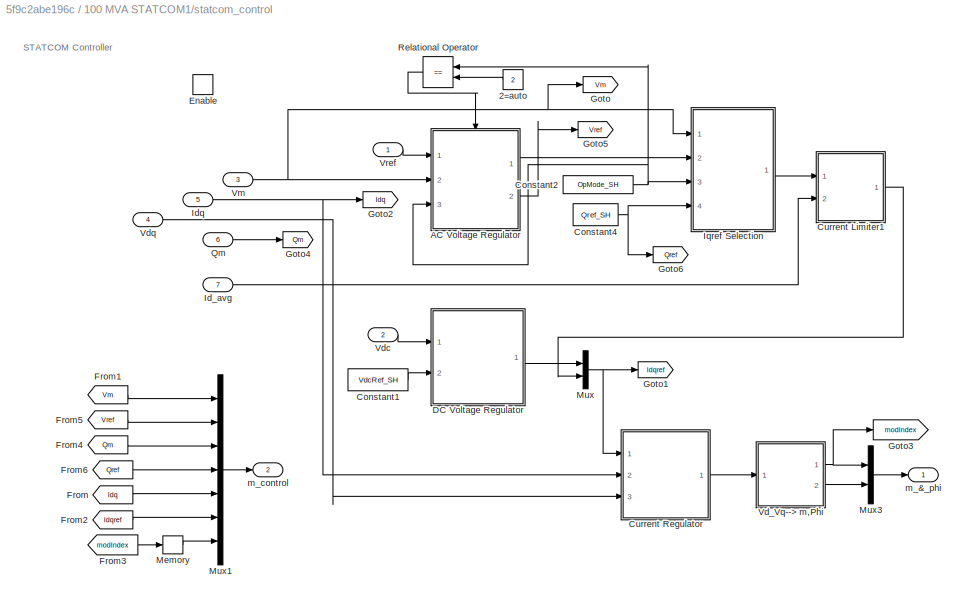
BLOCK [SubSystem] 100 MVA STATCOM1/statcom_control
  Ports = [7, 2, 1]
  RequestExecContextInheritance = off
BLOCK [Constant] 100 MVA STATCOM1/statcom_control/2=auto
  Value = 2
BLOCK [SubSystem] 100 MVA STATCOM1/statcom_control/AC Voltage Regulator
  Ports = [3, 2, 1]
  RequestExecContextInheritance = off
BLOCK [SubSystem] 100 MVA STATCOM1/statcom_control/AC Voltage Regulator/1st-Order Filter
  DialogController = POWERSYS.PowerSysDialog
  Ports = [1, 1]
  RequestExecContextInheritance = off
BLOCK [Inport] 100 MVA STATCOM1/statcom_control/AC Voltage Regulator/1st-Order Filter/In
BLOCK [Outport] 100 MVA STATCOM1/statcom_control/AC Voltage Regulator/1st-Order Filter/Out
  InitialOutput = 0
  VectorParamsAs1DForOutWhenUnconnected = off
BLOCK [StateSpace] 100 MVA STATCOM1/statcom_control/AC Voltage Regulator/1st-Order Filter/State-Space
  A = Ac
  B = Bc
  C = Cc
  D = Dc
  InitialCondition = x0c
  Ports = [1, 1]
BLOCK [Constant] 100 MVA STATCOM1/statcom_control/AC Voltage Regulator/Constant11
  Value = 2
BLOCK [EnablePort] 100 MVA STATCOM1/statcom_control/AC Voltage Regulator/Enable
  Ports = []
  PropagateVarSize = During execution
BLOCK [Integrator] 100 MVA STATCOM1/statcom_control/AC Voltage Regulator/Integrator
  AbsoluteTolerance = 1e-4
  LimitOutput = on
  LowerSaturationLimit = LowerLimit
  Ports = [1, 1]
  UpperSaturationLimit = UpperLimit
BLOCK [Outport] 100 MVA STATCOM1/statcom_control/AC Voltage Regulator/Iqref
  InitialOutput = 0
  VectorParamsAs1DForOutWhenUnconnected = off
BLOCK [Gain] 100 MVA STATCOM1/statcom_control/AC Voltage Regulator/Kp4
  Gain = Kp_Vac_SH
  OutDataTypeStr = Inherit: Same as input
  ParamDataTypeStr = Inherit: Same as input
  SaturateOnIntegerOverflow = on
BLOCK [Gain] 100 MVA STATCOM1/statcom_control/AC Voltage Regulator/Kp5
  Gain = Ki_Vac_SH
  OutDataTypeStr = Inherit: Same as input
  ParamDataTypeStr = Inherit: Same as input
  SaturateOnIntegerOverflow = on
BLOCK [Gain] 100 MVA STATCOM1/statcom_control/AC Voltage Regulator/Kp6
  Gain = Droop
  OutDataTypeStr = Inherit: Same as input
  ParamDataTypeStr = Inherit: Same as input
  SaturateOnIntegerOverflow = on
BLOCK [Memory] 100 MVA STATCOM1/statcom_control/AC Voltage Regulator/Memory2
BLOCK [Inport] 100 MVA STATCOM1/statcom_control/AC Voltage Regulator/OpMode
  Port = 3
BLOCK [RateLimiter] 100 MVA STATCOM1/statcom_control/AC Voltage Regulator/Rate Limiter
  FallingSlewLimit = -MaxRateChangeVref_SH
  RisingSlewLimit = MaxRateChangeVref_SH
BLOCK [RelationalOperator] 100 MVA STATCOM1/statcom_control/AC Voltage Regulator/Relational Operator
  InputSameDT = off
  Operator = ==
  Ports = [2, 1]
BLOCK [Saturate] 100 MVA STATCOM1/statcom_control/AC Voltage Regulator/Saturation1
  LowerLimit = LowerLimit
  NameLocation = top
  UpperLimit = UpperLimit
BLOCK [Scope] 100 MVA STATCOM1/statcom_control/AC Voltage Regulator/Scope
  Floating = off
  NumInputPorts = 1
  Ports = [1]
  ScopeSpecificationString = Simulink.scopes.TimeScopeBlockCfg('CurrentConfiguration', extmgr.ConfigurationSet(extmgr.Configuration('Core','General UI',true),extmgr.Configuration('Core','Source UI',true),extmgr.Configuration('Sources','WiredSimulink',true,'DataLoggingVariableName','ScopeData2'),extmgr.Configuration('Visuals','Time Domain',true),extmgr.Configuration('Tools','Plot Navigation',true),extmgr.Configuration('Tools',...<+40ch>
BLOCK [Sum] 100 MVA STATCOM1/statcom_control/AC Voltage Regulator/Sum1
  InputSameDT = on
  Inputs = |-+
  OutDataTypeStr = Inherit: Same as first input
  Ports = [2, 1]
  SaturateOnIntegerOverflow = on
BLOCK [Sum] 100 MVA STATCOM1/statcom_control/AC Voltage Regulator/Sum6
  IconShape = rectangular
  InputSameDT = on
  OutDataTypeStr = Inherit: Same as first input
  Ports = [2, 1]
  SaturateOnIntegerOverflow = on
BLOCK [Sum] 100 MVA STATCOM1/statcom_control/AC Voltage Regulator/Sum7
  InputSameDT = on
  Inputs = |+-
  OutDataTypeStr = Inherit: Same as first input
  Ports = [2, 1]
  SaturateOnIntegerOverflow = on
BLOCK [Switch] 100 MVA STATCOM1/statcom_control/AC Voltage Regulator/Switch
  InputSameDT = off
  Threshold = 0.5
BLOCK [Inport] 100 MVA STATCOM1/statcom_control/AC Voltage Regulator/Vm
  Port = 2
BLOCK [Inport] 100 MVA STATCOM1/statcom_control/AC Voltage Regulator/Vref
BLOCK [Outport] 100 MVA STATCOM1/statcom_control/AC Voltage Regulator/Vref*
  Port = 2
  VectorParamsAs1DForOutWhenUnconnected = off
BLOCK [Constant] 100 MVA STATCOM1/statcom_control/Constant1
  Value = VdcRef_SH
BLOCK [Constant] 100 MVA STATCOM1/statcom_control/Constant2
  Value = OpMode_SH
BLOCK [Constant] 100 MVA STATCOM1/statcom_control/Constant4
  Value = Qref_SH
BLOCK [SubSystem] 100 MVA STATCOM1/statcom_control/Current Limiter1
  Ports = [2, 1]
  RequestExecContextInheritance = off
BLOCK [RateLimiter] 100 MVA STATCOM1/statcom_control/Current Limiter1/ 200 pu//s
  FallingSlewLimit = -200
  RisingSlewLimit = 200
BLOCK [Constant] 100 MVA STATCOM1/statcom_control/Current Limiter1/(pu)
  Value = 1.03
BLOCK [Inport] 100 MVA STATCOM1/statcom_control/Current Limiter1/Id_avg
  Port = 2
BLOCK [Inport] 100 MVA STATCOM1/statcom_control/Current Limiter1/Iqref
BLOCK [Outport] 100 MVA STATCOM1/statcom_control/Current Limiter1/Iqref*
  VectorParamsAs1DForOutWhenUnconnected = off
BLOCK [Math] 100 MVA STATCOM1/statcom_control/Current Limiter1/Math Function1
  Operator = square
  Ports = [1, 1]
  SignedPower = on
BLOCK [Math] 100 MVA STATCOM1/statcom_control/Current Limiter1/Math Function2
  Operator = square
  Ports = [1, 1]
  SignedPower = on
BLOCK [Math] 100 MVA STATCOM1/statcom_control/Current Limiter1/Math Function3
  Operator = sqrt
  Ports = [1, 1]
  SignedPower = on
BLOCK [Math] 100 MVA STATCOM1/statcom_control/Current Limiter1/Math Function4
  Operator = square
  Ports = [1, 1]
  SignedPower = on
BLOCK [MinMax] 100 MVA STATCOM1/statcom_control/Current Limiter1/MinMax
  InputSameDT = on
  Inputs = 2
  Ports = [2, 1]
  SaturateOnIntegerOverflow = on
  ZeroCross = off
BLOCK [Product] 100 MVA STATCOM1/statcom_control/Current Limiter1/Product1
  OutDataTypeStr = Inherit: Same as first input
  Ports = [2, 1]
  SaturateOnIntegerOverflow = on
BLOCK [Saturate] 100 MVA STATCOM1/statcom_control/Current Limiter1/Saturation
  LowerLimit = 0
  UpperLimit = 1e6
BLOCK [Signum] 100 MVA STATCOM1/statcom_control/Current Limiter1/Sign
BLOCK [Sum] 100 MVA STATCOM1/statcom_control/Current Limiter1/Sum
  IconShape = rectangular
  Inputs = +-
  Ports = [2, 1]
  SaturateOnIntegerOverflow = on
BLOCK [SubSystem] 100 MVA STATCOM1/statcom_control/Current Regulator
  Ports = [3, 1]
  RequestExecContextInheritance = off
BLOCK [Demux] 100 MVA STATCOM1/statcom_control/Current Regulator/Demux
  DisplayOption = none
  Outputs = 2
  Ports = [1, 2]
BLOCK [Demux] 100 MVA STATCOM1/statcom_control/Current Regulator/Demux1
  DisplayOption = none
  Outputs = 2
  Ports = [1, 2]
BLOCK [Demux] 100 MVA STATCOM1/statcom_control/Current Regulator/Demux2
  DisplayOption = none
  Outputs = 2
  Ports = [1, 2]
BLOCK [Inport] 100 MVA STATCOM1/statcom_control/Current Regulator/Idq
  Port = 2
BLOCK [Inport] 100 MVA STATCOM1/statcom_control/Current Regulator/Idq_ref
BLOCK [Constant] 100 MVA STATCOM1/statcom_control/Current Regulator/Lchoke1
  Value = Kf_I
BLOCK [Mux] 100 MVA STATCOM1/statcom_control/Current Regulator/Mux
  DisplayOption = bar
  Inputs = 2
  Ports = [2, 1]
BLOCK [SubSystem] 100 MVA STATCOM1/statcom_control/Current Regulator/PI
  Ports = [1, 1]
  RequestExecContextInheritance = off
BLOCK [Saturate] 100 MVA STATCOM1/statcom_control/Current Regulator/PI/-1<Id<+1
  LowerLimit = LowerLimit
  UpperLimit = UpperLimit
BLOCK [Inport] 100 MVA STATCOM1/statcom_control/Current Regulator/PI/In1
BLOCK [Integrator] 100 MVA STATCOM1/statcom_control/Current Regulator/PI/Integrator
  AbsoluteTolerance = 1e-5
  InitialCondition = Init
  LimitOutput = on
  LowerSaturationLimit = LowerLimit
  Ports = [1, 1]
  UpperSaturationLimit = UpperLimit
BLOCK [Gain] 100 MVA STATCOM1/statcom_control/Current Regulator/PI/Kp4
  Gain = Kp_I
  OutDataTypeStr = Inherit: Same as input
  ParamDataTypeStr = Inherit: Same as input
  SaturateOnIntegerOverflow = on
BLOCK [Gain] 100 MVA STATCOM1/statcom_control/Current Regulator/PI/Kp5
  Gain = Ki_I
  OutDataTypeStr = Inherit: Same as input
  ParamDataTypeStr = Inherit: Same as input
  SaturateOnIntegerOverflow = on
BLOCK [Outport] 100 MVA STATCOM1/statcom_control/Current Regulator/PI/Out1
  VectorParamsAs1DForOutWhenUnconnected = off
BLOCK [Sum] 100 MVA STATCOM1/statcom_control/Current Regulator/PI/Sum6
  IconShape = rectangular
  InputSameDT = on
  OutDataTypeStr = Inherit: Same as first input
  Ports = [2, 1]
  SaturateOnIntegerOverflow = on
BLOCK [SubSystem] 100 MVA STATCOM1/statcom_control/Current Regulator/PI1
  Ports = [1, 1]
  RequestExecContextInheritance = off
BLOCK [Saturate] 100 MVA STATCOM1/statcom_control/Current Regulator/PI1/-1<Id<+1
  LowerLimit = LowerLimit
  UpperLimit = UpperLimit
BLOCK [Inport] 100 MVA STATCOM1/statcom_control/Current Regulator/PI1/In1
BLOCK [Integrator] 100 MVA STATCOM1/statcom_control/Current Regulator/PI1/Integrator
  AbsoluteTolerance = 1e-5
  InitialCondition = Init
  LimitOutput = on
  LowerSaturationLimit = LowerLimit
  Ports = [1, 1]
  UpperSaturationLimit = UpperLimit
BLOCK [Gain] 100 MVA STATCOM1/statcom_control/Current Regulator/PI1/Kp4
  Gain = Kp_I
  OutDataTypeStr = Inherit: Same as input
  ParamDataTypeStr = Inherit: Same as input
  SaturateOnIntegerOverflow = on
BLOCK [Gain] 100 MVA STATCOM1/statcom_control/Current Regulator/PI1/Kp5
  Gain = Ki_I
  OutDataTypeStr = Inherit: Same as input
  ParamDataTypeStr = Inherit: Same as input
  SaturateOnIntegerOverflow = on
BLOCK [Outport] 100 MVA STATCOM1/statcom_control/Current Regulator/PI1/Out1
  VectorParamsAs1DForOutWhenUnconnected = off
BLOCK [Sum] 100 MVA STATCOM1/statcom_control/Current Regulator/PI1/Sum6
  IconShape = rectangular
  InputSameDT = on
  OutDataTypeStr = Inherit: Same as first input
  Ports = [2, 1]
  SaturateOnIntegerOverflow = on
BLOCK [Product] 100 MVA STATCOM1/statcom_control/Current Regulator/Product
  InputSameDT = on
  OutDataTypeStr = Inherit: Same as first input
  Ports = [2, 1]
  SaturateOnIntegerOverflow = on
BLOCK [Product] 100 MVA STATCOM1/statcom_control/Current Regulator/Product1
  InputSameDT = on
  OutDataTypeStr = Inherit: Same as first input
  Ports = [2, 1]
  SaturateOnIntegerOverflow = on
BLOCK [Sum] 100 MVA STATCOM1/statcom_control/Current Regulator/Sum1
  InputSameDT = on
  Inputs = |+-
  OutDataTypeStr = Inherit: Same as first input
  Ports = [2, 1]
  SaturateOnIntegerOverflow = on
BLOCK [Sum] 100 MVA STATCOM1/statcom_control/Current Regulator/Sum2
  InputSameDT = on
  Inputs = -+|
  OutDataTypeStr = Inherit: Same as first input
  Ports = [2, 1]
  SaturateOnIntegerOverflow = on
BLOCK [Sum] 100 MVA STATCOM1/statcom_control/Current Regulator/Sum3
  InputSameDT = on
  Inputs = |++
  OutDataTypeStr = Inherit: Same as first input
  Ports = [2, 1]
  SaturateOnIntegerOverflow = on
BLOCK [Sum] 100 MVA STATCOM1/statcom_control/Current Regulator/Sum4
  InputSameDT = on
  Inputs = |+-
  OutDataTypeStr = Inherit: Same as first input
  Ports = [2, 1]
  SaturateOnIntegerOverflow = on
BLOCK [Sum] 100 MVA STATCOM1/statcom_control/Current Regulator/Sum5
  InputSameDT = on
  Inputs = |+-
  OutDataTypeStr = Inherit: Same as first input
  Ports = [2, 1]
  SaturateOnIntegerOverflow = on
BLOCK [Sum] 100 MVA STATCOM1/statcom_control/Current Regulator/Sum6
  InputSameDT = on
  Inputs = |-+
  OutDataTypeStr = Inherit: Same as first input
  Ports = [2, 1]
  SaturateOnIntegerOverflow = on
BLOCK [Inport] 100 MVA STATCOM1/statcom_control/Current Regulator/Vdq
  Port = 3
BLOCK [Outport] 100 MVA STATCOM1/statcom_control/Current Regulator/Vdq*
  VectorParamsAs1DForOutWhenUnconnected = off
BLOCK [SubSystem] 100 MVA STATCOM1/statcom_control/DC Voltage Regulator
  Ports = [2, 1]
  RequestExecContextInheritance = off
BLOCK [Saturate] 100 MVA STATCOM1/statcom_control/DC Voltage Regulator/-1<Id<+1
  LowerLimit = -1
  UpperLimit = 1
BLOCK [Outport] 100 MVA STATCOM1/statcom_control/DC Voltage Regulator/Id_Ref
  InitialOutput = 0
  VectorParamsAs1DForOutWhenUnconnected = off
BLOCK [Integrator] 100 MVA STATCOM1/statcom_control/DC Voltage Regulator/Integrator
  AbsoluteTolerance = 1e-4
  LimitOutput = on
  LowerSaturationLimit = -1
  Ports = [1, 1]
  UpperSaturationLimit = 1
BLOCK [Gain] 100 MVA STATCOM1/statcom_control/DC Voltage Regulator/Kp4
  Gain = Kp
  OutDataTypeStr = Inherit: Same as input
  ParamDataTypeStr = Inherit: Same as input
  SaturateOnIntegerOverflow = on
BLOCK [Gain] 100 MVA STATCOM1/statcom_control/DC Voltage Regulator/Kp5
  Gain = Ki
  OutDataTypeStr = Inherit: Same as input
  ParamDataTypeStr = Inherit: Same as input
  SaturateOnIntegerOverflow = on
BLOCK [Sum] 100 MVA STATCOM1/statcom_control/DC Voltage Regulator/Sum
  InputSameDT = on
  Inputs = |+-
  OutDataTypeStr = Inherit: Same as first input
  Ports = [2, 1]
  SaturateOnIntegerOverflow = on
BLOCK [Sum] 100 MVA STATCOM1/statcom_control/DC Voltage Regulator/Sum6
  IconShape = rectangular
  InputSameDT = on
  OutDataTypeStr = Inherit: Same as first input
  Ports = [2, 1]
  SaturateOnIntegerOverflow = on
BLOCK [Inport] 100 MVA STATCOM1/statcom_control/DC Voltage Regulator/Vdc
BLOCK [Inport] 100 MVA STATCOM1/statcom_control/DC Voltage Regulator/Vdc_Ref
  Port = 2
BLOCK [EnablePort] 100 MVA STATCOM1/statcom_control/Enable
  Ports = []
  PropagateVarSize = During execution
BLOCK [From] 100 MVA STATCOM1/statcom_control/From
  CloseFcn = tagdialog Close
  GotoTag = Idq
BLOCK [From] 100 MVA STATCOM1/statcom_control/From1
  CloseFcn = tagdialog Close
  GotoTag = Vm
BLOCK [From] 100 MVA STATCOM1/statcom_control/From2
  CloseFcn = tagdialog Close
  GotoTag = Idqref
BLOCK [From] 100 MVA STATCOM1/statcom_control/From3
  CloseFcn = tagdialog Close
  GotoTag = modIndex
BLOCK [From] 100 MVA STATCOM1/statcom_control/From4
  CloseFcn = tagdialog Close
  GotoTag = Qm
BLOCK [From] 100 MVA STATCOM1/statcom_control/From5
  CloseFcn = tagdialog Close
  GotoTag = Vref
BLOCK [From] 100 MVA STATCOM1/statcom_control/From6
  CloseFcn = tagdialog Close
  GotoTag = Qref
BLOCK [Goto] 100 MVA STATCOM1/statcom_control/Goto
  GotoTag = Vm
BLOCK [Goto] 100 MVA STATCOM1/statcom_control/Goto1
  GotoTag = Idqref
BLOCK [Goto] 100 MVA STATCOM1/statcom_control/Goto2
  GotoTag = Idq
BLOCK [Goto] 100 MVA STATCOM1/statcom_control/Goto3
  GotoTag = modIndex
BLOCK [Goto] 100 MVA STATCOM1/statcom_control/Goto4
  GotoTag = Qm
BLOCK [Goto] 100 MVA STATCOM1/statcom_control/Goto5
  GotoTag = Vref
BLOCK [Goto] 100 MVA STATCOM1/statcom_control/Goto6
  GotoTag = Qref
BLOCK [Inport] 100 MVA STATCOM1/statcom_control/Id_avg
  Port = 7
  PortDimensions = 1
  SampleTime = 0
BLOCK [Inport] 100 MVA STATCOM1/statcom_control/Idq
  Port = 5
  PortDimensions = 2
  SampleTime = 0
BLOCK [SubSystem] 100 MVA STATCOM1/statcom_control/Iqref Selection
  Ports = [4, 1]
  RequestExecContextInheritance = off
BLOCK [Saturate] 100 MVA STATCOM1/statcom_control/Iqref Selection/-1<Iq<+1
  LowerLimit = -1
  UpperLimit = 1
BLOCK [Saturate] 100 MVA STATCOM1/statcom_control/Iqref Selection/Avoid division by 0
  LowerLimit = 1e-5
  UpperLimit = 1e6
BLOCK [Constant] 100 MVA STATCOM1/statcom_control/Iqref Selection/Constant11
  Value = 2
BLOCK [Gain] 100 MVA STATCOM1/statcom_control/Iqref Selection/Deg->Rad1
  Gain = -1
  OutDataTypeStr = Inherit: Same as input
  ParamDataTypeStr = Inherit: Same as input
  SaturateOnIntegerOverflow = on
BLOCK [Outport] 100 MVA STATCOM1/statcom_control/Iqref Selection/Iqref*
  VectorParamsAs1DForOutWhenUnconnected = off
BLOCK [Inport] 100 MVA STATCOM1/statcom_control/Iqref Selection/IqrefAuto
  Port = 2
BLOCK [Memory] 100 MVA STATCOM1/statcom_control/Iqref Selection/Memory1
BLOCK [Inport] 100 MVA STATCOM1/statcom_control/Iqref Selection/OpMode
  Port = 3
BLOCK [Product] 100 MVA STATCOM1/statcom_control/Iqref Selection/Product
  InputSameDT = on
  Inputs = */
  OutDataTypeStr = Inherit: Same as first input
  Ports = [2, 1]
  SaturateOnIntegerOverflow = on
BLOCK [Inport] 100 MVA STATCOM1/statcom_control/Iqref Selection/Qref
  Port = 4
  PortDimensions = 1
BLOCK [RateLimiter] 100 MVA STATCOM1/statcom_control/Iqref Selection/Rate Limiter1
  FallingSlewLimit = -MaxRateChangeQref_SH
  RisingSlewLimit = MaxRateChangeQref_SH
BLOCK [RelationalOperator] 100 MVA STATCOM1/statcom_control/Iqref Selection/Relational Operator1
  Operator = ==
  Ports = [2, 1]
BLOCK [Switch] 100 MVA STATCOM1/statcom_control/Iqref Selection/Switch
  Threshold = 0.5
BLOCK [Inport] 100 MVA STATCOM1/statcom_control/Iqref Selection/Vm
  PortDimensions = 1
BLOCK [Memory] 100 MVA STATCOM1/statcom_control/Memory
  InitialCondition = 0.8
BLOCK [Mux] 100 MVA STATCOM1/statcom_control/Mux
  DisplayOption = bar
  Inputs = 2
  Ports = [2, 1]
BLOCK [Mux] 100 MVA STATCOM1/statcom_control/Mux1
  DisplayOption = bar
  Inputs = [1 1 1 1 2 2 1]
  Ports = [7, 1]
BLOCK [Mux] 100 MVA STATCOM1/statcom_control/Mux3
  DisplayOption = bar
  Inputs = 2
  Ports = [2, 1]
BLOCK [Inport] 100 MVA STATCOM1/statcom_control/Qm
  Port = 6
  PortDimensions = 1
  SampleTime = 0
BLOCK [RelationalOperator] 100 MVA STATCOM1/statcom_control/Relational Operator
  InputSameDT = off
  Operator = ==
  Ports = [2, 1]
BLOCK [SubSystem] 100 MVA STATCOM1/statcom_control/Vd_Vq--> m,Phi
  Ports = [1, 2]
  RequestExecContextInheritance = off
BLOCK [Saturate] 100 MVA STATCOM1/statcom_control/Vd_Vq--> m,Phi/0<m<1
  LowerLimit = 0
  NameLocation = top
  UpperLimit = 1
BLOCK [Reference] 100 MVA STATCOM1/statcom_control/Vd_Vq--> m,Phi/Cartesian to Polar  REF=simulink_extras/Transformations/Cartesian to
Polar
  Ports = [2, 2]
  SourceBlock = simulink_extras/Transformations/Cartesian to\nPolar
  SourceProductName = Simulink Extras
  SourceType = Cart2Polar
BLOCK [Demux] 100 MVA STATCOM1/statcom_control/Vd_Vq--> m,Phi/Demux
  DisplayOption = none
  Outputs = 2
  Ports = [1, 2]
BLOCK [Gain] 100 MVA STATCOM1/statcom_control/Vd_Vq--> m,Phi/Kp5
  Gain = K_Vdq2m_SH
  OutDataTypeStr = Inherit: Same as input
  ParamDataTypeStr = Inherit: Same as input
  SaturateOnIntegerOverflow = on
BLOCK [Inport] 100 MVA STATCOM1/statcom_control/Vd_Vq--> m,Phi/VdVq
BLOCK [Outport] 100 MVA STATCOM1/statcom_control/Vd_Vq--> m,Phi/m
  VectorParamsAs1DForOutWhenUnconnected = off
BLOCK [Outport] 100 MVA STATCOM1/statcom_control/Vd_Vq--> m,Phi/phi
  Port = 2
  VectorParamsAs1DForOutWhenUnconnected = off
BLOCK [Inport] 100 MVA STATCOM1/statcom_control/Vdc
  Port = 2
  PortDimensions = 1
BLOCK [Inport] 100 MVA STATCOM1/statcom_control/Vdq
  Port = 4
  PortDimensions = 2
  SampleTime = 0
BLOCK [Inport] 100 MVA STATCOM1/statcom_control/Vm
  Port = 3
  PortDimensions = 1
  SampleTime = 0
BLOCK [Inport] 100 MVA STATCOM1/statcom_control/Vref
BLOCK [Outport] 100 MVA STATCOM1/statcom_control/m_&_phi
  InitialOutput = [0]
  VectorParamsAs1DForOutWhenUnconnected = off
BLOCK [Outport] 100 MVA STATCOM1/statcom_control/m_control
  InitialOutput = [0]
  Port = 2
  VectorParamsAs1DForOutWhenUnconnected = off
BLOCK [Abs] Abs1
  SaturateOnIntegerOverflow = off
BLOCK [Abs] Abs2
  SaturateOnIntegerOverflow = off
BLOCK [Abs] Abs3
  SaturateOnIntegerOverflow = off
BLOCK [Sum] Add
  IconShape = rectangular
  Inputs = +-
  Ports = [2, 1]
BLOCK [Sum] Add1
  IconShape = rectangular
  Inputs = +-
  Ports = [2, 1]
BLOCK [Sum] Add2
  IconShape = rectangular
  Inputs = +-
  Ports = [2, 1]
BLOCK [Sum] Add3
  IconShape = rectangular
  Inputs = +++
  Ports = [3, 1]
BLOCK [SubSystem] Area 1
  Ports = [0, 0, 0, 0, 0, 0, 3]
  RequestExecContextInheritance = off
BLOCK [PMIOPort] Area 1/ A
  Side = Right
BLOCK [PMIOPort] Area 1/ B
  Port = 2
  Side = Right
BLOCK [PMIOPort] Area 1/ C
  Port = 3
  Side = Right
BLOCK [Reference] Area 1/-200MVAR  REF=spsThreePhaseParallelRLCLoadLib/Three-Phase
Parallel RLC Load
  AttributesFormatString = \n
  NameLocation = right
  Ports = [0, 0, 0, 0, 0, 3]
  SourceBlock = spsThreePhaseParallelRLCLoadLib/Three-Phase\nParallel RLC Load
  SourceProductBaseCode = PS
  SourceType = Three-Phase Parallel RLC Load
BLOCK [Reference] Area 1/10 km Area 1  REF=spsThreePhasePISectionLineLib/Three-Phase
PI Section Line
  AttributesFormatString = \n
  Ports = [0, 0, 0, 0, 0, 3, 3]
  SourceBlock = spsThreePhasePISectionLineLib/Three-Phase\nPI Section Line
  SourceProductBaseCode = PS
  SourceType = Three-Phase PI Section Line
BLOCK [Reference] Area 1/25km Area 1  REF=spsThreePhasePISectionLineLib/Three-Phase
PI Section Line
  AttributesFormatString = \n
  Ports = [0, 0, 0, 0, 0, 3, 3]
  SourceBlock = spsThreePhasePISectionLineLib/Three-Phase\nPI Section Line
  SourceProductBaseCode = PS
  SourceType = Three-Phase PI Section Line
BLOCK [Reference] Area 1/967MW 100MVAR -187MVAR  REF=spsThreePhaseParallelRLCLoadLib/Three-Phase
Parallel RLC Load
  AttributesFormatString = \n
  NameLocation = left
  Ports = [0, 0, 0, 0, 0, 3]
  SourceBlock = spsThreePhaseParallelRLCLoadLib/Three-Phase\nParallel RLC Load
  SourceProductBaseCode = PS
  SourceType = Three-Phase Parallel RLC Load
BLOCK [From] Area 1/From
  CloseFcn = tagdialog Close
  GotoTag = PSSmodel
  TagVisibility = global
BLOCK [Reference] Area 1/Load Flow Bus  REF=spsLoadFlowBusLib/Load Flow Bus
  AttributesFormatString = %<ID>\n%<Vbase>V\n%<VLF>pu\n%<angleLF>deg.
  NameLocation = right
  Ports = [0, 0, 0, 0, 0, 1]
  SourceBlock = spsLoadFlowBusLib/Load Flow Bus
  SourceProductBaseCode = PS
  SourceType = Load Flow Bus
BLOCK [Reference] Area 1/Load Flow Bus1  REF=spsLoadFlowBusLib/Load Flow Bus
  AttributesFormatString = %<ID>\n%<Vbase>V\n%<VLF>pu\n%<angleLF>deg.
  NameLocation = right
  Ports = [0, 0, 0, 0, 0, 1]
  SourceBlock = spsLoadFlowBusLib/Load Flow Bus
  SourceProductBaseCode = PS
  SourceType = Load Flow Bus
BLOCK [Reference] Area 1/M1 900 MVA  REF=spsSynchronousMachinepuStandardLib/Synchronous Machine
pu Standard
  AttributesFormatString = \n\n
  Ports = [2, 1, 0, 0, 0, 0, 3]
  SourceBlock = spsSynchronousMachinepuStandardLib/Synchronous Machine\npu Standard
  SourceProductBaseCode = PS
  SourceType = Synchronous Machine
BLOCK [SubSystem] Area 1/M1: Turbine & Regulators
  Ports = [4, 2]
  RequestExecContextInheritance = off
BLOCK [BusSelector] Area 1/M1: Turbine & Regulators/Bus Selector
  OutputSignals = dq0 components.Stator voltage  vd (pu),dq0 components.Stator voltage  vq (pu),Mechanical.Rotor angle deviation  d_theta (rad),Mechanical.Rotor speed  wm  (pu),Mechanical.Electrical power  Pe (pu),Mechanical.Rotor speed deviation  dw (pu),Mechanical.Rotor mechanical angle  theta (deg)  <repeated x4 — deduplicated; at blocks: Bus Selector>
  Ports = [1, 7]
BLOCK [ComplexToMagnitudeAngle] Area 1/M1: Turbine & Regulators/Complex to Magnitude-Angle
  Output = Magnitude
  Ports = [1, 1]
BLOCK [Reference] Area 1/M1: Turbine & Regulators/Delta Pa PSS   REF=spsGenericPowerSystemStabilizerLib/Generic
Power System Stabilizer
  Ports = [1, 1]
  SourceBlock = spsGenericPowerSystemStabilizerLib/Generic\nPower System Stabilizer
  SourceProductBaseCode = PS
  SourceType = Generic Power System Stabilizer
BLOCK [Reference] Area 1/M1: Turbine & Regulators/Delta w PSS (Kundur)   REF=spsGenericPowerSystemStabilizerLib/Generic
Power System Stabilizer
  Ports = [1, 1]
  SourceBlock = spsGenericPowerSystemStabilizerLib/Generic\nPower System Stabilizer
  SourceProductBaseCode = PS
  SourceType = Generic Power System Stabilizer
BLOCK [Reference] Area 1/M1: Turbine & Regulators/EXCITATION  REF=spsExcitationSystemLib/Excitation System
  Ports = [4, 1]
  SourceBlock = spsExcitationSystemLib/Excitation System
  SourceProductBaseCode = PS
  SourceType = Excitation System
BLOCK [Goto] Area 1/M1: Turbine & Regulators/Goto
  GotoTag = theta1
  TagVisibility = global
BLOCK [Goto] Area 1/M1: Turbine & Regulators/Goto1
  GotoTag = Vt1
  TagVisibility = global
BLOCK [Goto] Area 1/M1: Turbine & Regulators/Goto2
  GotoTag = w1
  TagVisibility = global
BLOCK [Goto] Area 1/M1: Turbine & Regulators/Goto3
  GotoTag = Pa1
  TagVisibility = global
BLOCK [Goto] Area 1/M1: Turbine & Regulators/Goto4
  GotoTag = pss1
  TagVisibility = global
BLOCK [Goto] Area 1/M1: Turbine & Regulators/Goto5
  GotoTag = EFD1
  TagVisibility = global
BLOCK [Goto] Area 1/M1: Turbine & Regulators/Goto6
  GotoTag = Pe1
  TagVisibility = global
BLOCK [Goto] Area 1/M1: Turbine & Regulators/Goto7
  GotoTag = M1
  TagVisibility = global
BLOCK [Reference] Area 1/M1: Turbine & Regulators/MB-PSS   REF=spsMultiBandPowerSystemStabilizerLib/Multi-Band
Power System Stabilizer
  Ports = [1, 1]
  SourceBlock = spsMultiBandPowerSystemStabilizerLib/Multi-Band\nPower System Stabilizer
  SourceProductBaseCode = PS
  SourceType = Multi-Band Power System Stabilizer
BLOCK [MultiPortSwitch] Area 1/M1: Turbine & Regulators/Multiport Switch
  Inputs = 4
  Ports = [5, 1]
  SaturateOnIntegerOverflow = off
BLOCK [Inport] Area 1/M1: Turbine & Regulators/PSS
  Port = 4
BLOCK [Constant] Area 1/M1: Turbine & Regulators/PSS model1
  Value = 0
BLOCK [Constant] Area 1/M1: Turbine & Regulators/PSS model2
BLOCK [Outport] Area 1/M1: Turbine & Regulators/Pm
  InitialOutput = 0
BLOCK [Inport] Area 1/M1: Turbine & Regulators/Pref
  Port = 2
BLOCK [RealImagToComplex] Area 1/M1: Turbine & Regulators/Real-Imag to Complex
  Ports = [2, 1]
BLOCK [Reference] Area 1/M1: Turbine & Regulators/STG  REF=spsSteamTurbineandGovernorLib/Steam Turbine
and Governor
  Ports = [4, 4]
  SourceBlock = spsSteamTurbineandGovernorLib/Steam Turbine\nand Governor
  SourceProductBaseCode = PS
  SourceType = Steam Turbine and Governor
BLOCK [Sum] Area 1/M1: Turbine & Regulators/Sum1
  IconShape = rectangular
  InputSameDT = on
  OutDataTypeStr = Inherit: Same as first input
  Ports = [2, 1]
  SaturateOnIntegerOverflow = on
BLOCK [Sum] Area 1/M1: Turbine & Regulators/Sum2
  IconShape = rectangular
  InputSameDT = on
  Inputs = -+
  OutDataTypeStr = Inherit: Same as first input
  Ports = [2, 1]
  SaturateOnIntegerOverflow = on
BLOCK [Terminator] Area 1/M1: Turbine & Regulators/Terminator
BLOCK [Terminator] Area 1/M1: Turbine & Regulators/Terminator1
BLOCK [Terminator] Area 1/M1: Turbine & Regulators/Terminator2
BLOCK [Outport] Area 1/M1: Turbine & Regulators/Vf
  InitialOutput = 0
  Port = 2
BLOCK [Inport] Area 1/M1: Turbine & Regulators/Vref
  Port = 3
BLOCK [Inport] Area 1/M1: Turbine & Regulators/m
BLOCK [Constant] Area 1/M1: Turbine & Regulators/wref
  NameLocation = top
BLOCK [Reference] Area 1/M2 900 MVA  REF=spsSynchronousMachinepuStandardLib/Synchronous Machine
pu Standard
  AttributesFormatString = \n\n
  Ports = [2, 1, 0, 0, 0, 0, 3]
  SourceBlock = spsSynchronousMachinepuStandardLib/Synchronous Machine\npu Standard
  SourceProductBaseCode = PS
  SourceType = Synchronous Machine
BLOCK [SubSystem] Area 1/M2: Turbine & Regulators
  Ports = [4, 2]
  RequestExecContextInheritance = off
BLOCK [BusSelector] Area 1/M2: Turbine & Regulators/Bus Selector
  Ports = [1, 7]
BLOCK [ComplexToMagnitudeAngle] Area 1/M2: Turbine & Regulators/Complex to Magnitude-Angle
  Output = Magnitude
  Ports = [1, 1]
BLOCK [Reference] Area 1/M2: Turbine & Regulators/Delta Pa PSS   REF=spsGenericPowerSystemStabilizerLib/Generic
Power System Stabilizer
  Ports = [1, 1]
  SourceBlock = spsGenericPowerSystemStabilizerLib/Generic\nPower System Stabilizer
  SourceProductBaseCode = PS
  SourceType = Generic Power System Stabilizer
BLOCK [Reference] Area 1/M2: Turbine & Regulators/Delta w PSS (Kundur)   REF=spsGenericPowerSystemStabilizerLib/Generic
Power System Stabilizer
  Ports = [1, 1]
  SourceBlock = spsGenericPowerSystemStabilizerLib/Generic\nPower System Stabilizer
  SourceProductBaseCode = PS
  SourceType = Generic Power System Stabilizer
BLOCK [Reference] Area 1/M2: Turbine & Regulators/EXCITATION  REF=spsExcitationSystemLib/Excitation System
  Ports = [4, 1]
  SourceBlock = spsExcitationSystemLib/Excitation System
  SourceProductBaseCode = PS
  SourceType = Excitation System
BLOCK [Goto] Area 1/M2: Turbine & Regulators/Goto
  GotoTag = theta2
  TagVisibility = global
BLOCK [Goto] Area 1/M2: Turbine & Regulators/Goto1
  GotoTag = Vt2
  TagVisibility = global
BLOCK [Goto] Area 1/M2: Turbine & Regulators/Goto2
  GotoTag = w2
  TagVisibility = global
BLOCK [Goto] Area 1/M2: Turbine & Regulators/Goto3
  GotoTag = Pa2
  TagVisibility = global
BLOCK [Goto] Area 1/M2: Turbine & Regulators/Goto4
  GotoTag = pss2
  TagVisibility = global
BLOCK [Goto] Area 1/M2: Turbine & Regulators/Goto5
  GotoTag = EFD2
  TagVisibility = global
BLOCK [Goto] Area 1/M2: Turbine & Regulators/Goto6
  GotoTag = Pe2
  TagVisibility = global
BLOCK [Goto] Area 1/M2: Turbine & Regulators/Goto7
  GotoTag = M2
  TagVisibility = global
BLOCK [Reference] Area 1/M2: Turbine & Regulators/MB-PSS   REF=spsMultiBandPowerSystemStabilizerLib/Multi-Band
Power System Stabilizer
  Ports = [1, 1]
  SourceBlock = spsMultiBandPowerSystemStabilizerLib/Multi-Band\nPower System Stabilizer
  SourceProductBaseCode = PS
  SourceType = Multi-Band Power System Stabilizer
BLOCK [MultiPortSwitch] Area 1/M2: Turbine & Regulators/Multiport Switch
  Inputs = 4
  Ports = [5, 1]
  SaturateOnIntegerOverflow = off
BLOCK [Inport] Area 1/M2: Turbine & Regulators/PSS
  Port = 4
BLOCK [Constant] Area 1/M2: Turbine & Regulators/PSS model1
  Value = 0
BLOCK [Constant] Area 1/M2: Turbine & Regulators/PSS model2
BLOCK [Outport] Area 1/M2: Turbine & Regulators/Pm
  InitialOutput = 0
BLOCK [Inport] Area 1/M2: Turbine & Regulators/Pref
  Port = 2
BLOCK [RealImagToComplex] Area 1/M2: Turbine & Regulators/Real-Imag to Complex
  Ports = [2, 1]
BLOCK [Reference] Area 1/M2: Turbine & Regulators/STG  REF=spsSteamTurbineandGovernorLib/Steam Turbine
and Governor
  Ports = [4, 4]
  SourceBlock = spsSteamTurbineandGovernorLib/Steam Turbine\nand Governor
  SourceProductBaseCode = PS
  SourceType = Steam Turbine and Governor
BLOCK [Sum] Area 1/M2: Turbine & Regulators/Sum1
  IconShape = rectangular
  InputSameDT = on
  OutDataTypeStr = Inherit: Same as first input
  Ports = [2, 1]
  SaturateOnIntegerOverflow = on
BLOCK [Sum] Area 1/M2: Turbine & Regulators/Sum2
  IconShape = rectangular
  InputSameDT = on
  Inputs = -+
  OutDataTypeStr = Inherit: Same as first input
  Ports = [2, 1]
  SaturateOnIntegerOverflow = on
BLOCK [Terminator] Area 1/M2: Turbine & Regulators/Terminator
BLOCK [Terminator] Area 1/M2: Turbine & Regulators/Terminator1
BLOCK [Terminator] Area 1/M2: Turbine & Regulators/Terminator2
BLOCK [Outport] Area 1/M2: Turbine & Regulators/Vf
  InitialOutput = 0
  Port = 2
BLOCK [Inport] Area 1/M2: Turbine & Regulators/Vref
  Port = 3
BLOCK [Inport] Area 1/M2: Turbine & Regulators/m
BLOCK [Constant] Area 1/M2: Turbine & Regulators/wref
  NameLocation = top
BLOCK [Constant] Area 1/Pref1
  Value = 0.777778
BLOCK [Constant] Area 1/Pref2
  Value = 0.777689+0.10
BLOCK [Reference] Area 1/Stair Generator  REF=spsStairGeneratorLib/Stair
Generator
  Ports = [0, 1]
  SourceBlock = spsStairGeneratorLib/Stair\nGenerator
  SourceProductBaseCode = PS
  SourceType = Stair Generator
BLOCK [Switch] Area 1/Switch
  SaturateOnIntegerOverflow = off
  Threshold = 1
BLOCK [Reference] Area 1/T1: 900MVA 20 kV-230 kV  REF=spsThreePhaseTransformerTwoWindingsLib/Three-Phase
Transformer
(Two Windings)
  AttributesFormatString = \n
  Ports = [0, 0, 0, 0, 0, 3, 3]
  SourceBlock = spsThreePhaseTransformerTwoWindingsLib/Three-Phase\nTransformer\n(Two Windings)
  SourceProductBaseCode = PS
  SourceType = Three-Phase Transformer (Two Windings)
BLOCK [Reference] Area 1/T2: 900MVA 20 kV//230 kV  REF=spsThreePhaseTransformerTwoWindingsLib/Three-Phase
Transformer
(Two Windings)
  AttributesFormatString = \n
  Ports = [0, 0, 0, 0, 0, 3, 3]
  SourceBlock = spsThreePhaseTransformerTwoWindingsLib/Three-Phase\nTransformer\n(Two Windings)
  SourceProductBaseCode = PS
  SourceType = Three-Phase Transformer (Two Windings)
BLOCK [Constant] Area 1/Vref1
  NameLocation = top
  Value = 1.0
BLOCK [Constant] Area 1/Vref1 
  Value = 1.0+.05
BLOCK [Constant] Area 1/Vref2
  Value = 1+0.20
BLOCK [SubSystem] Area 2
  Ports = [0, 0, 0, 0, 0, 3]
  RequestExecContextInheritance = off
BLOCK [Reference] Area 2/-350MVAR  REF=spsThreePhaseParallelRLCLoadLib/Three-Phase
Parallel RLC Load
  AttributesFormatString = \n
  NameLocation = right
  Ports = [0, 0, 0, 0, 0, 3]
  SourceBlock = spsThreePhaseParallelRLCLoadLib/Three-Phase\nParallel RLC Load
  SourceProductBaseCode = PS
  SourceType = Three-Phase Parallel RLC Load
BLOCK [Reference] Area 2/10 km Area 2  REF=spsThreePhasePISectionLineLib/Three-Phase
PI Section Line
  AttributesFormatString = \n
  Ports = [0, 0, 0, 0, 0, 3, 3]
  SourceBlock = spsThreePhasePISectionLineLib/Three-Phase\nPI Section Line
  SourceProductBaseCode = PS
  SourceType = Three-Phase PI Section Line
BLOCK [Reference] Area 2/1767MW 100MVAR -187MVAR  REF=spsThreePhaseParallelRLCLoadLib/Three-Phase
Parallel RLC Load
  AttributesFormatString = \n
  NameLocation = left
  Ports = [0, 0, 0, 0, 0, 3]
  SourceBlock = spsThreePhaseParallelRLCLoadLib/Three-Phase\nParallel RLC Load
  SourceProductBaseCode = PS
  SourceType = Three-Phase Parallel RLC Load
BLOCK [Reference] Area 2/25km Area 2  REF=spsThreePhasePISectionLineLib/Three-Phase
PI Section Line
  AttributesFormatString = \n
  Ports = [0, 0, 0, 0, 0, 3, 3]
  SourceBlock = spsThreePhasePISectionLineLib/Three-Phase\nPI Section Line
  SourceProductBaseCode = PS
  SourceType = Three-Phase PI Section Line
BLOCK [PMIOPort] Area 2/A
  Side = Left
BLOCK [PMIOPort] Area 2/B
  Port = 2
  Side = Left
BLOCK [PMIOPort] Area 2/C
  Port = 3
  Side = Left
BLOCK [From] Area 2/From
  CloseFcn = tagdialog Close
  GotoTag = PSSmodel
  TagVisibility = global
BLOCK [Reference] Area 2/Load Flow Bus  REF=spsLoadFlowBusLib/Load Flow Bus
  AttributesFormatString = %<ID>\n%<Vbase>V\n%<VLF>pu\n%<angleLF>deg.
  NameLocation = right
  Ports = [0, 0, 0, 0, 0, 1]
  SourceBlock = spsLoadFlowBusLib/Load Flow Bus
  SourceProductBaseCode = PS
  SourceType = Load Flow Bus
BLOCK [Reference] Area 2/Load Flow Bus1  REF=spsLoadFlowBusLib/Load Flow Bus
  AttributesFormatString = %<ID>\n%<Vbase>V\n%<VLF>pu\n%<angleLF>deg.
  NameLocation = right
  Ports = [0, 0, 0, 0, 0, 1]
  SourceBlock = spsLoadFlowBusLib/Load Flow Bus
  SourceProductBaseCode = PS
  SourceType = Load Flow Bus
BLOCK [Reference] Area 2/M3 900 MVA  REF=spsSynchronousMachinepuStandardLib/Synchronous Machine
pu Standard
  AttributesFormatString = \n\n
  Ports = [2, 1, 0, 0, 0, 0, 3]
  SourceBlock = spsSynchronousMachinepuStandardLib/Synchronous Machine\npu Standard
  SourceProductBaseCode = PS
  SourceType = Synchronous Machine
BLOCK [SubSystem] Area 2/M3: Turbine & Regulators
  Ports = [4, 2]
  RequestExecContextInheritance = off
BLOCK [BusSelector] Area 2/M3: Turbine & Regulators/Bus Selector
  Ports = [1, 7]
BLOCK [ComplexToMagnitudeAngle] Area 2/M3: Turbine & Regulators/Complex to Magnitude-Angle
  Output = Magnitude
  Ports = [1, 1]
BLOCK [Reference] Area 2/M3: Turbine & Regulators/Delta Pa PSS   REF=spsGenericPowerSystemStabilizerLib/Generic
Power System Stabilizer
  Ports = [1, 1]
  SourceBlock = spsGenericPowerSystemStabilizerLib/Generic\nPower System Stabilizer
  SourceProductBaseCode = PS
  SourceType = Generic Power System Stabilizer
BLOCK [Reference] Area 2/M3: Turbine & Regulators/Delta w PSS (Kundur)   REF=spsGenericPowerSystemStabilizerLib/Generic
Power System Stabilizer
  Ports = [1, 1]
  SourceBlock = spsGenericPowerSystemStabilizerLib/Generic\nPower System Stabilizer
  SourceProductBaseCode = PS
  SourceType = Generic Power System Stabilizer
BLOCK [Reference] Area 2/M3: Turbine & Regulators/EXCITATION  REF=spsExcitationSystemLib/Excitation System
  Ports = [4, 1]
  SourceBlock = spsExcitationSystemLib/Excitation System
  SourceProductBaseCode = PS
  SourceType = Excitation System
BLOCK [Goto] Area 2/M3: Turbine & Regulators/Goto
  GotoTag = theta3
  TagVisibility = global
BLOCK [Goto] Area 2/M3: Turbine & Regulators/Goto1
  GotoTag = Vt3
  TagVisibility = global
BLOCK [Goto] Area 2/M3: Turbine & Regulators/Goto2
  GotoTag = w3
  TagVisibility = global
BLOCK [Goto] Area 2/M3: Turbine & Regulators/Goto3
  GotoTag = Pa3
  TagVisibility = global
BLOCK [Goto] Area 2/M3: Turbine & Regulators/Goto4
  GotoTag = pss3
  TagVisibility = global
BLOCK [Goto] Area 2/M3: Turbine & Regulators/Goto5
  GotoTag = EFD3
  TagVisibility = global
BLOCK [Goto] Area 2/M3: Turbine & Regulators/Goto6
  GotoTag = Pe3
  TagVisibility = global
BLOCK [Goto] Area 2/M3: Turbine & Regulators/Goto7
  GotoTag = M3
  TagVisibility = global
BLOCK [Reference] Area 2/M3: Turbine & Regulators/MB-PSS   REF=spsMultiBandPowerSystemStabilizerLib/Multi-Band
Power System Stabilizer
  Ports = [1, 1]
  SourceBlock = spsMultiBandPowerSystemStabilizerLib/Multi-Band\nPower System Stabilizer
  SourceProductBaseCode = PS
  SourceType = Multi-Band Power System Stabilizer
BLOCK [MultiPortSwitch] Area 2/M3: Turbine & Regulators/Multiport Switch
  Inputs = 4
  Ports = [5, 1]
  SaturateOnIntegerOverflow = off
BLOCK [Inport] Area 2/M3: Turbine & Regulators/PSS
  Port = 4
BLOCK [Constant] Area 2/M3: Turbine & Regulators/PSS model1
  Value = 0
BLOCK [Constant] Area 2/M3: Turbine & Regulators/PSS model2
BLOCK [Outport] Area 2/M3: Turbine & Regulators/Pm
  InitialOutput = 0
BLOCK [Inport] Area 2/M3: Turbine & Regulators/Pref
  Port = 2
BLOCK [RealImagToComplex] Area 2/M3: Turbine & Regulators/Real-Imag to Complex
  Ports = [2, 1]
BLOCK [Reference] Area 2/M3: Turbine & Regulators/STG  REF=spsSteamTurbineandGovernorLib/Steam Turbine
and Governor
  Ports = [4, 4]
  SourceBlock = spsSteamTurbineandGovernorLib/Steam Turbine\nand Governor
  SourceProductBaseCode = PS
  SourceType = Steam Turbine and Governor
BLOCK [Sum] Area 2/M3: Turbine & Regulators/Sum1
  IconShape = rectangular
  InputSameDT = on
  OutDataTypeStr = Inherit: Same as first input
  Ports = [2, 1]
  SaturateOnIntegerOverflow = on
BLOCK [Sum] Area 2/M3: Turbine & Regulators/Sum2
  IconShape = rectangular
  InputSameDT = on
  Inputs = -+
  OutDataTypeStr = Inherit: Same as first input
  Ports = [2, 1]
  SaturateOnIntegerOverflow = on
BLOCK [Terminator] Area 2/M3: Turbine & Regulators/Terminator
BLOCK [Terminator] Area 2/M3: Turbine & Regulators/Terminator1
BLOCK [Terminator] Area 2/M3: Turbine & Regulators/Terminator2
BLOCK [Outport] Area 2/M3: Turbine & Regulators/Vf
  InitialOutput = 0
  Port = 2
BLOCK [Inport] Area 2/M3: Turbine & Regulators/Vref
  Port = 3
BLOCK [Inport] Area 2/M3: Turbine & Regulators/m
BLOCK [Constant] Area 2/M3: Turbine & Regulators/wref
  NameLocation = top
BLOCK [Reference] Area 2/M4 900 MVA  REF=spsSynchronousMachinepuStandardLib/Synchronous Machine
pu Standard
  AttributesFormatString = \n\n
  Ports = [2, 1, 0, 0, 0, 0, 3]
  SourceBlock = spsSynchronousMachinepuStandardLib/Synchronous Machine\npu Standard
  SourceProductBaseCode = PS
  SourceType = Synchronous Machine
BLOCK [SubSystem] Area 2/M4: Turbine & Regulators
  Ports = [4, 2]
  RequestExecContextInheritance = off
BLOCK [BusSelector] Area 2/M4: Turbine & Regulators/Bus Selector
  Ports = [1, 7]
BLOCK [ComplexToMagnitudeAngle] Area 2/M4: Turbine & Regulators/Complex to Magnitude-Angle
  Output = Magnitude
  Ports = [1, 1]
BLOCK [Reference] Area 2/M4: Turbine & Regulators/Delta Pa PSS   REF=spsGenericPowerSystemStabilizerLib/Generic
Power System Stabilizer
  Ports = [1, 1]
  SourceBlock = spsGenericPowerSystemStabilizerLib/Generic\nPower System Stabilizer
  SourceProductBaseCode = PS
  SourceType = Generic Power System Stabilizer
BLOCK [Reference] Area 2/M4: Turbine & Regulators/Delta w PSS (Kundur)   REF=spsGenericPowerSystemStabilizerLib/Generic
Power System Stabilizer
  Ports = [1, 1]
  SourceBlock = spsGenericPowerSystemStabilizerLib/Generic\nPower System Stabilizer
  SourceProductBaseCode = PS
  SourceType = Generic Power System Stabilizer
BLOCK [Reference] Area 2/M4: Turbine & Regulators/EXCITATION  REF=spsExcitationSystemLib/Excitation System
  Ports = [4, 1]
  SourceBlock = spsExcitationSystemLib/Excitation System
  SourceProductBaseCode = PS
  SourceType = Excitation System
BLOCK [Goto] Area 2/M4: Turbine & Regulators/Goto
  GotoTag = theta4
  TagVisibility = global
BLOCK [Goto] Area 2/M4: Turbine & Regulators/Goto1
  GotoTag = Vt4
  TagVisibility = global
BLOCK [Goto] Area 2/M4: Turbine & Regulators/Goto2
  GotoTag = w4
  TagVisibility = global
BLOCK [Goto] Area 2/M4: Turbine & Regulators/Goto3
  GotoTag = Pa4
  TagVisibility = global
BLOCK [Goto] Area 2/M4: Turbine & Regulators/Goto4
  GotoTag = pss4
  TagVisibility = global
BLOCK [Goto] Area 2/M4: Turbine & Regulators/Goto5
  GotoTag = EFD4
  TagVisibility = global
BLOCK [Goto] Area 2/M4: Turbine & Regulators/Goto6
  GotoTag = Pe4
  TagVisibility = global
BLOCK [Goto] Area 2/M4: Turbine & Regulators/Goto7
  GotoTag = M4
  TagVisibility = global
BLOCK [Reference] Area 2/M4: Turbine & Regulators/MB-PSS   REF=spsMultiBandPowerSystemStabilizerLib/Multi-Band
Power System Stabilizer
  Ports = [1, 1]
  SourceBlock = spsMultiBandPowerSystemStabilizerLib/Multi-Band\nPower System Stabilizer
  SourceProductBaseCode = PS
  SourceType = Multi-Band Power System Stabilizer
BLOCK [MultiPortSwitch] Area 2/M4: Turbine & Regulators/Multiport Switch
  Inputs = 4
  Ports = [5, 1]
  SaturateOnIntegerOverflow = off
BLOCK [Inport] Area 2/M4: Turbine & Regulators/PSS
  Port = 4
BLOCK [Constant] Area 2/M4: Turbine & Regulators/PSS model1
  Value = 0
BLOCK [Constant] Area 2/M4: Turbine & Regulators/PSS model2
BLOCK [Outport] Area 2/M4: Turbine & Regulators/Pm
  InitialOutput = 0
BLOCK [Inport] Area 2/M4: Turbine & Regulators/Pref
  Port = 2
BLOCK [RealImagToComplex] Area 2/M4: Turbine & Regulators/Real-Imag to Complex
  Ports = [2, 1]
BLOCK [Reference] Area 2/M4: Turbine & Regulators/STG  REF=spsSteamTurbineandGovernorLib/Steam Turbine
and Governor
  Ports = [4, 4]
  SourceBlock = spsSteamTurbineandGovernorLib/Steam Turbine\nand Governor
  SourceProductBaseCode = PS
  SourceType = Steam Turbine and Governor
BLOCK [Sum] Area 2/M4: Turbine & Regulators/Sum1
  IconShape = rectangular
  InputSameDT = on
  OutDataTypeStr = Inherit: Same as first input
  Ports = [2, 1]
  SaturateOnIntegerOverflow = on
BLOCK [Sum] Area 2/M4: Turbine & Regulators/Sum2
  IconShape = rectangular
  InputSameDT = on
  Inputs = -+
  OutDataTypeStr = Inherit: Same as first input
  Ports = [2, 1]
  SaturateOnIntegerOverflow = on
BLOCK [Terminator] Area 2/M4: Turbine & Regulators/Terminator
BLOCK [Terminator] Area 2/M4: Turbine & Regulators/Terminator1
BLOCK [Terminator] Area 2/M4: Turbine & Regulators/Terminator2
BLOCK [Outport] Area 2/M4: Turbine & Regulators/Vf
  InitialOutput = 0
  Port = 2
BLOCK [Inport] Area 2/M4: Turbine & Regulators/Vref
  Port = 3
BLOCK [Inport] Area 2/M4: Turbine & Regulators/m
BLOCK [Constant] Area 2/M4: Turbine & Regulators/wref
  NameLocation = top
BLOCK [Constant] Area 2/Pref3
  Value = 0.798889
BLOCK [Constant] Area 2/Pref4
  Value = 0.777778
BLOCK [Reference] Area 2/T3: 900MVA 20 kV-230 kV  REF=spsThreePhaseTransformerTwoWindingsLib/Three-Phase
Transformer
(Two Windings)
  AttributesFormatString = \n
  Ports = [0, 0, 0, 0, 0, 3, 3]
  SourceBlock = spsThreePhaseTransformerTwoWindingsLib/Three-Phase\nTransformer\n(Two Windings)
  SourceProductBaseCode = PS
  SourceType = Three-Phase Transformer (Two Windings)
BLOCK [Reference] Area 2/T4: 900MVA 20 kV//230 kV  REF=spsThreePhaseTransformerTwoWindingsLib/Three-Phase
Transformer
(Two Windings)
  AttributesFormatString = \n
  Ports = [0, 0, 0, 0, 0, 3, 3]
  SourceBlock = spsThreePhaseTransformerTwoWindingsLib/Three-Phase\nTransformer\n(Two Windings)
  SourceProductBaseCode = PS
  SourceType = Three-Phase Transformer (Two Windings)
BLOCK [Constant] Area 2/Vref3
  Value = 1.0
BLOCK [Constant] Area 2/Vref4
BLOCK [Reference] B1  REF=spsThreePhaseVIMeasurementLib/Three-Phase
V-I Measurement
  Ports = [0, 0, 0, 0, 0, 3, 3]
  SourceBlock = spsThreePhaseVIMeasurementLib/Three-Phase\nV-I Measurement
  SourceProductBaseCode = PS
  SourceType = Three-Phase VI Measurement
BLOCK [Reference] B2  REF=spsThreePhaseVIMeasurementLib/Three-Phase
V-I Measurement
  Ports = [0, 0, 0, 0, 0, 3, 3]
  SourceBlock = spsThreePhaseVIMeasurementLib/Three-Phase\nV-I Measurement
  SourceProductBaseCode = PS
  SourceType = Three-Phase VI Measurement
BLOCK [Reference] Brk1  REF=spsThreePhaseBreakerLib/Three-Phase Breaker
  AttributesFormatString = \n
  Ports = [0, 0, 0, 0, 0, 3, 3]
  SourceBlock = spsThreePhaseBreakerLib/Three-Phase Breaker
  SourceProductBaseCode = PS
  SourceType = Three-Phase Breaker
BLOCK [Clock] Clock
BLOCK [Constant] Constant
  Commented = on
BLOCK [Display] Display
  Decimation = 1
  Ports = [1]
BLOCK [SubSystem] Double click here for more info
  OpenFcn = showdemo(bdroot(gcb))
  Ports = []
  RequestExecContextInheritance = off
BLOCK [Reference] Fault  REF=spsThreePhaseFaultLib/Three-Phase Fault
  Commented = on
  NameLocation = left
  Ports = [0, 0, 0, 0, 0, 3]
  SourceBlock = spsThreePhaseFaultLib/Three-Phase Fault
  SourceProductBaseCode = PS
  SourceType = Three-Phase Fault
BLOCK [From] From
  GotoTag = M1
  TagVisibility = global
BLOCK [From] From1
  GotoTag = M2
  TagVisibility = global
BLOCK [From] From2
  GotoTag = M3
  TagVisibility = global
BLOCK [From] From3
  GotoTag = M4
  TagVisibility = global
BLOCK [Goto] Goto
  GotoTag = PSSmodel
  TagVisibility = global
BLOCK [Goto] Goto1
  Commented = on
  GotoTag = m1
  TagVisibility = global
BLOCK [Ground] Ground
  Commented = on
BLOCK [Integrator] Integrator1
  Ports = [1, 1]
BLOCK [Reference] Line 1a (110 km)  REF=spsDistributedParametersLineLib/Distributed Parameters Line
  AttributesFormatString = \n
  Ports = [0, 0, 0, 0, 0, 3, 3]
  SourceBlock = spsDistributedParametersLineLib/Distributed Parameters Line
  SourceProductBaseCode = PS
  SourceType = Distributed Parameters Line
BLOCK [Reference] Line 1b (110 km)  REF=spsDistributedParametersLineLib/Distributed Parameters Line
  AttributesFormatString = \n
  Ports = [0, 0, 0, 0, 0, 3, 3]
  SourceBlock = spsDistributedParametersLineLib/Distributed Parameters Line
  SourceProductBaseCode = PS
  SourceType = Distributed Parameters Line
BLOCK [Reference] Load Flow Bus  REF=spsLoadFlowBusLib/Load Flow Bus
  AttributesFormatString = %<ID>\n%<Vbase>V\n%<VLF>pu\n%<angleLF>deg.
  NameLocation = right
  Ports = [0, 0, 0, 0, 0, 1]
  SourceBlock = spsLoadFlowBusLib/Load Flow Bus
  SourceProductBaseCode = PS
  SourceType = Load Flow Bus
BLOCK [Reference] Load Flow Bus1  REF=spsLoadFlowBusLib/Load Flow Bus
  AttributesFormatString = %<ID>\n%<Vbase>V\n%<VLF>pu\n%<angleLF>deg.
  NameLocation = right
  Ports = [0, 0, 0, 0, 0, 1]
  SourceBlock = spsLoadFlowBusLib/Load Flow Bus
  SourceProductBaseCode = PS
  SourceType = Load Flow Bus
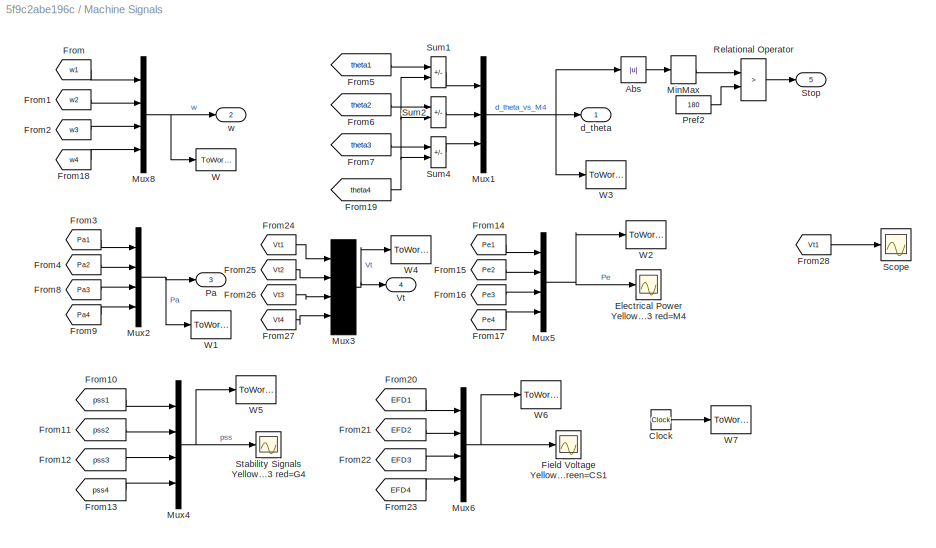
BLOCK [SubSystem] Machine Signals
  Ports = [0, 5]
  RequestExecContextInheritance = off
BLOCK [Abs] Machine Signals/Abs
BLOCK [Clock] Machine Signals/Clock
BLOCK [Scope] Machine Signals/Electrical Power Yellow=M1 mag=M2 cyan=M3 red=M4 
  Floating = off
  NumInputPorts = 1
  Ports = [1]
  ScopeSpecificationString = Simulink.scopes.TimeScopeBlockCfg('CurrentConfiguration', extmgr.ConfigurationSet(extmgr.Configuration('Core','General UI',true),extmgr.Configuration('Core','Source UI',true),extmgr.Configuration('Sources','WiredSimulink',true,'DataLoggingVariableName','ScopeData1','DataLoggingSaveFormat','StructureWithTime','DataLoggingDecimation','1','DataLoggingDecimateData',true),extmgr.Configuration('Visuals'...<+1730ch>
BLOCK [Scope] Machine Signals/Field Voltage Yellow=G1 mag=G2 cyan=G3 red=G4 green=CS1
  Floating = off
  NumInputPorts = 1
  Ports = [1]
  ScopeSpecificationString = Simulink.scopes.TimeScopeBlockCfg('CurrentConfiguration', extmgr.ConfigurationSet(extmgr.Configuration('Core','General UI',true),extmgr.Configuration('Core','Source UI',true),extmgr.Configuration('Sources','WiredSimulink',true,'DataLoggingVariableName','ScopeData4','DataLoggingSaveFormat','StructureWithTime','DataLoggingDecimation','1','DataLoggingDecimateData',true),extmgr.Configuration('Visuals'...<+1706ch>
BLOCK [From] Machine Signals/From
  CloseFcn = tagdialog Close
  GotoTag = w1
  TagVisibility = global
BLOCK [From] Machine Signals/From1
  CloseFcn = tagdialog Close
  GotoTag = w2
  TagVisibility = global
BLOCK [From] Machine Signals/From10
  CloseFcn = tagdialog Close
  GotoTag = pss1
  TagVisibility = global
BLOCK [From] Machine Signals/From11
  CloseFcn = tagdialog Close
  GotoTag = pss2
  TagVisibility = global
BLOCK [From] Machine Signals/From12
  CloseFcn = tagdialog Close
  GotoTag = pss3
  TagVisibility = global
BLOCK [From] Machine Signals/From13
  CloseFcn = tagdialog Close
  GotoTag = pss4
  TagVisibility = global
BLOCK [From] Machine Signals/From14
  CloseFcn = tagdialog Close
  GotoTag = Pe1
  TagVisibility = global
BLOCK [From] Machine Signals/From15
  CloseFcn = tagdialog Close
  GotoTag = Pe2
  TagVisibility = global
BLOCK [From] Machine Signals/From16
  CloseFcn = tagdialog Close
  GotoTag = Pe3
  TagVisibility = global
BLOCK [From] Machine Signals/From17
  CloseFcn = tagdialog Close
  GotoTag = Pe4
  TagVisibility = global
BLOCK [From] Machine Signals/From18
  CloseFcn = tagdialog Close
  GotoTag = w4
  TagVisibility = global
BLOCK [From] Machine Signals/From19
  CloseFcn = tagdialog Close
  GotoTag = theta4
  TagVisibility = global
BLOCK [From] Machine Signals/From2
  CloseFcn = tagdialog Close
  GotoTag = w3
  TagVisibility = global
BLOCK [From] Machine Signals/From20
  CloseFcn = tagdialog Close
  GotoTag = EFD1
  TagVisibility = global
BLOCK [From] Machine Signals/From21
  CloseFcn = tagdialog Close
  GotoTag = EFD2
  TagVisibility = global
BLOCK [From] Machine Signals/From22
  CloseFcn = tagdialog Close
  GotoTag = EFD3
  TagVisibility = global
BLOCK [From] Machine Signals/From23
  CloseFcn = tagdialog Close
  GotoTag = EFD4
  TagVisibility = global
BLOCK [From] Machine Signals/From24
  CloseFcn = tagdialog Close
  GotoTag = Vt1
  TagVisibility = global
BLOCK [From] Machine Signals/From25
  CloseFcn = tagdialog Close
  GotoTag = Vt2
  TagVisibility = global
BLOCK [From] Machine Signals/From26
  CloseFcn = tagdialog Close
  GotoTag = Vt3
  TagVisibility = global
BLOCK [From] Machine Signals/From27
  CloseFcn = tagdialog Close
  GotoTag = Vt4
  TagVisibility = global
BLOCK [From] Machine Signals/From28
  CloseFcn = tagdialog Close
  GotoTag = Vt1
  TagVisibility = global
BLOCK [From] Machine Signals/From3
  CloseFcn = tagdialog Close
  GotoTag = Pa1
  TagVisibility = global
BLOCK [From] Machine Signals/From4
  CloseFcn = tagdialog Close
  GotoTag = Pa2
  TagVisibility = global
BLOCK [From] Machine Signals/From5
  CloseFcn = tagdialog Close
  GotoTag = theta1
  TagVisibility = global
BLOCK [From] Machine Signals/From6
  CloseFcn = tagdialog Close
  GotoTag = theta2
  TagVisibility = global
BLOCK [From] Machine Signals/From7
  CloseFcn = tagdialog Close
  GotoTag = theta3
  TagVisibility = global
BLOCK [From] Machine Signals/From8
  CloseFcn = tagdialog Close
  GotoTag = Pa3
  TagVisibility = global
BLOCK [From] Machine Signals/From9
  CloseFcn = tagdialog Close
  GotoTag = Pa4
  TagVisibility = global
BLOCK [MinMax] Machine Signals/MinMax
  Function = max
  InputSameDT = on
  Ports = [1, 1]
  SaturateOnIntegerOverflow = on
BLOCK [Mux] Machine Signals/Mux1
  DisplayOption = bar
  Inputs = 3
  Ports = [3, 1]
BLOCK [Mux] Machine Signals/Mux2
  DisplayOption = bar
  Ports = [4, 1]
BLOCK [Mux] Machine Signals/Mux3
  DisplayOption = bar
  Ports = [4, 1]
BLOCK [Mux] Machine Signals/Mux4
  DisplayOption = bar
  Ports = [4, 1]
BLOCK [Mux] Machine Signals/Mux5
  DisplayOption = bar
  Ports = [4, 1]
BLOCK [Mux] Machine Signals/Mux6
  DisplayOption = bar
  Ports = [4, 1]
BLOCK [Mux] Machine Signals/Mux8
  DisplayOption = bar
  Ports = [4, 1]
BLOCK [Outport] Machine Signals/Pa
  Port = 3
BLOCK [Constant] Machine Signals/Pref2
  NameLocation = top
  Value = 180
BLOCK [RelationalOperator] Machine Signals/Relational Operator
  Operator = >
  Ports = [2, 1]
BLOCK [Scope] Machine Signals/Scope
  Floating = off
  NumInputPorts = 1
  Ports = [1]
  ScopeSpecificationString = Simulink.scopes.TimeScopeBlockCfg('CurrentConfiguration', extmgr.ConfigurationSet(extmgr.Configuration('Core','General UI',true),extmgr.Configuration('Core','Source UI',true),extmgr.Configuration('Sources','WiredSimulink',true,'DataLoggingVariableName','ScopeData1'),extmgr.Configuration('Visuals','Time Domain',true,'SerializedDisplays',{struct('MinYLimReal','0.95512','MaxYLimReal','1.21796','YLabe...<+1435ch>
BLOCK [Scope] Machine Signals/Stability Signals Yellow=G1 mag=G2 cyan=G3 red=G4 
  Floating = off
  NumInputPorts = 1
  Ports = [1]
  ScopeSpecificationString = Simulink.scopes.TimeScopeBlockCfg('CurrentConfiguration', extmgr.ConfigurationSet(extmgr.Configuration('Core','General UI',true),extmgr.Configuration('Core','Source UI',true),extmgr.Configuration('Sources','WiredSimulink',true,'DataLoggingVariableName','ScopeData3','DataLoggingSaveFormat','StructureWithTime','DataLoggingDecimation','1','DataLoggingDecimateData',true),extmgr.Configuration('Visuals'...<+1688ch>
BLOCK [Outport] Machine Signals/Stop
  Port = 5
BLOCK [Sum] Machine Signals/Sum1
  IconShape = rectangular
  InputSameDT = on
  Inputs = +-
  OutDataTypeStr = Inherit: Same as first input
  Ports = [2, 1]
  SaturateOnIntegerOverflow = on
BLOCK [Sum] Machine Signals/Sum2
  IconShape = rectangular
  InputSameDT = on
  Inputs = +-
  OutDataTypeStr = Inherit: Same as first input
  Ports = [2, 1]
  SaturateOnIntegerOverflow = on
BLOCK [Sum] Machine Signals/Sum4
  IconShape = rectangular
  InputSameDT = on
  Inputs = +-
  OutDataTypeStr = Inherit: Same as first input
  Ports = [2, 1]
  SaturateOnIntegerOverflow = on
BLOCK [Outport] Machine Signals/Vt
  Port = 4
BLOCK [ToWorkspace] Machine Signals/W
  MaxDataPoints = inf
  Ports = [1]
  SampleTime = 1/60
  VariableName = w
BLOCK [ToWorkspace] Machine Signals/W1
  MaxDataPoints = inf
  Ports = [1]
  SampleTime = 1/60
  VariableName = Pa
BLOCK [ToWorkspace] Machine Signals/W2
  MaxDataPoints = inf
  Ports = [1]
  SampleTime = 1/60
  VariableName = Pe
BLOCK [ToWorkspace] Machine Signals/W3
  MaxDataPoints = inf
  Ports = [1]
  SampleTime = 1/60
  VariableName = DTH
BLOCK [ToWorkspace] Machine Signals/W4
  MaxDataPoints = inf
  Ports = [1]
  SampleTime = 1/60
  VariableName = Vt
BLOCK [ToWorkspace] Machine Signals/W5
  MaxDataPoints = inf
  Ports = [1]
  SampleTime = 1/60
  VariableName = PSS
BLOCK [ToWorkspace] Machine Signals/W6
  MaxDataPoints = inf
  Ports = [1]
  SampleTime = 1/60
  VariableName = EFD
BLOCK [ToWorkspace] Machine Signals/W7
  MaxDataPoints = inf
  Ports = [1]
  SampleTime = 1/60
  VariableName = t
BLOCK [Outport] Machine Signals/d_theta
BLOCK [Outport] Machine Signals/w
  Port = 2
BLOCK [Scope] Machines
  Floating = off
  NameLocation = top
  NumInputPorts = 4
  Ports = [4]
  ScopeSpecificationString = Simulink.scopes.TimeScopeBlockCfg('CurrentConfiguration', extmgr.ConfigurationSet(extmgr.Configuration('Core','General UI',true),extmgr.Configuration('Core','Source UI',true),extmgr.Configuration('Sources','WiredSimulink',true,'DataLoggingVariableName','mach','DataLoggingSaveFormat','StructureWithTime','DataLoggingDecimation','1','DataLoggingDecimateData',true),extmgr.Configuration('Visuals','Time...<+3926ch>
BLOCK [Mux] Mux1
  Commented = on
  DisplayOption = bar
  Inputs = 2
  Ports = [2, 1]
BLOCK [Mux] Mux3
  Commented = on
  DisplayOption = bar
  Inputs = 2
  Ports = [2, 1]
BLOCK [Constant] PSS model
BLOCK [Product] Product
  Ports = [2, 1]
BLOCK [SubSystem] Signals & Scopes
  Commented = on
  Ports = [0, 4]
  RequestExecContextInheritance = off
BLOCK [Gain] Signals & Scopes/->MVA
  Gain = 100*2/3
BLOCK [Abs] Signals & Scopes/Abs
  NameLocation = top
  SaturateOnIntegerOverflow = off
BLOCK [Abs] Signals & Scopes/Abs1
  NameLocation = top
  SaturateOnIntegerOverflow = off
BLOCK [BusSelector] Signals & Scopes/Bus Selector
  OutputSignals = Power.Vabc_prim cmplx (pu),Power.Iabc_prim cmplx (pu),Power.Vdc (V),Control.Vm (pu),Control.Vref (pu),Control.Qm (pu),Control.Qref (pu),Control.Id (pu),Control.Idref (pu),Control.Iq (pu),Control.Iqref (pu),Control.modIndex
  Ports = [1, 12]
BLOCK [Demux] Signals & Scopes/Demux
  Outputs = 2
  Ports = [1, 2]
BLOCK [From] Signals & Scopes/From
  GotoTag = m1
BLOCK [From] Signals & Scopes/From2
  CloseFcn = tagdialog Close
  GotoTag = Vabc_B1
  TagVisibility = global
BLOCK [From] Signals & Scopes/From3
  CloseFcn = tagdialog Close
  GotoTag = Iabc_B1
  TagVisibility = global
BLOCK [Scope] Signals & Scopes/IdIq
  Floating = off
  NumInputPorts = 2
  Ports = [2]
  ScopeSpecificationString = C++SS(StrPVP('Location','[35, 74, 576, 692]'),StrPVP('Open','off'),StrPVP('ZoomMode','xonly'),MxPVP('AxesTitles',54,'struct(''axes1'',''%<SignalLabel>'',''axes2'',''%<SignalLabel>'')'),StrPVP('YMin','-1~5.55112e-017'),StrPVP('YMax','1.5~1.4'),StrPVP('SaveName','VIprim4'),StrPVP('DataFormat','StructureWithTime'),StrPVP('LimitDataPoints','off'),StrPVP('BlockParamSampleInput','on'),StrPVP('BlockParam...<+42ch>
BLOCK [Mux] Signals & Scopes/Mux
  DisplayOption = bar
  Inputs = 2
  Ports = [2, 1]
BLOCK [Mux] Signals & Scopes/Mux1
  DisplayOption = bar
  Inputs = 2
  Ports = [2, 1]
BLOCK [Mux] Signals & Scopes/Mux2
  DisplayOption = bar
  Inputs = 2
  Ports = [2, 1]
BLOCK [Scope] Signals & Scopes/PQ_L1
  Floating = off
  NumInputPorts = 2
  Ports = [2]
  ScopeSpecificationString = C++SS(StrPVP('Location','[1599, 295, 2172, 749]'),StrPVP('Open','off'),StrPVP('ZoomMode','yonly'),MxPVP('AxesTitles',54,'struct(''axes1'',''%<SignalLabel>'',''axes2'',''%<SignalLabel>'')'),MxPVP('ScopeGraphics',57,'struct(''FigureColor'',''[0.5 0.5 0.5]'',''AxesColor'',''[0 0 0]'',''AxesTickColor'',''[1 1 1]'',''LineColors'',''[1 1 0;1 0 1;0 1 1;1 0 0;0 1 0;0 0 1]'',''LineStyles'',''-|-|-|-|-|-'',...<+350ch>
BLOCK [Reference] Signals & Scopes/Power (3ph, Phasor)  REF=spsPower3phPhasorLib/Power
(3ph, Phasor)
  Ports = [2, 2]
  SourceBlock = spsPower3phPhasorLib/Power\n(3ph, Phasor)
  SourceProductBaseCode = PS
  SourceType = Power (3ph, Phasor)
BLOCK [Outport] Signals & Scopes/Q
  Port = 3
BLOCK [Outport] Signals & Scopes/Qref
  Port = 4
BLOCK [Scope] Signals & Scopes/VI_STATCOM
  Floating = off
  NumInputPorts = 2
  Ports = [2]
  ScopeSpecificationString = C++SS(StrPVP('Location','[36, 127, 609, 581]'),StrPVP('Open','off'),StrPVP('ZoomMode','xonly'),MxPVP('AxesTitles',54,'struct(''axes1'',''%<SignalLabel>'',''axes2'',''%<SignalLabel>'')'),MxPVP('ScopeGraphics',57,'struct(''FigureColor'',''[0.5 0.5 0.5]'',''AxesColor'',''[0 0 0]'',''AxesTickColor'',''[1 1 1]'',''LineColors'',''[1 1 0;1 0 1;0 1 1;1 0 0;0 1 0;0 0 1]'',''LineStyles'',''-|-|-|-|-|-'',''L...<+353ch>
BLOCK [Scope] Signals & Scopes/Vdc
  Floating = off
  NumInputPorts = 1
  Ports = [1]
  ScopeSpecificationString = C++SS(StrPVP('Location','[28, 359, 518, 757]'),StrPVP('Open','off'),StrPVP('ZoomMode','xonly'),MxPVP('AxesTitles',54,'struct(''axes1'',''%<SignalLabel>'')'),MxPVP('ScopeGraphics',57,'struct(''FigureColor'',''[0.5 0.5 0.5]'',''AxesColor'',''[0 0 0]'',''AxesTickColor'',''[1 1 1]'',''LineColors'',''[1 1 0;1 0 1;0 1 1;1 0 0;0 1 0;0 0 1]'',''LineStyles'',''-|-|-|-|-|-'',''LineWidths'',''[0.5 0.5 0.5 0....<+306ch>
BLOCK [Outport] Signals & Scopes/Vm
BLOCK [Outport] Signals & Scopes/Vref
  Port = 2
BLOCK [Scope] Signals & Scopes/modIndex
  Floating = off
  NumInputPorts = 1
  Ports = [1]
  ScopeSpecificationString = C++SS(StrPVP('Location','[160, 133, 646, 619]'),StrPVP('Open','off'),StrPVP('ZoomMode','xonly'),MxPVP('AxesTitles',54,'struct(''axes1'',''%<SignalLabel>'')'),MxPVP('ScopeGraphics',57,'struct(''FigureColor'',''[0.5 0.5 0.5]'',''AxesColor'',''[0 0 0]'',''AxesTickColor'',''[1 1 1]'',''LineColors'',''[1 1 0;1 0 1;0 1 1;1 0 0;0 1 0;0 0 1]'',''LineStyles'',''-|-|-|-|-|-'',''LineWidths'',''[0.5 0.5 0.5 0...<+308ch>
BLOCK [SubSystem] SubSystem
  OpenFcn = openfig('psbPSSbode.fig');
  Ports = []
  RequestExecContextInheritance = off
BLOCK [SubSystem] SubSystem3
  OpenFcn = openfig('psbPSSstep.fig');
  Ports = []
  RequestExecContextInheritance = off
BLOCK [SubSystem] SubSystem4
  OpenFcn = openfig('psbPSSfault.fig');
  Ports = []
  RequestExecContextInheritance = off
BLOCK [Scope] System
  Floating = off
  NameLocation = top
  NumInputPorts = 2
  Ports = [2]
  ScopeSpecificationString = Simulink.scopes.TimeScopeBlockCfg('CurrentConfiguration', extmgr.ConfigurationSet(extmgr.Configuration('Core','General UI',true),extmgr.Configuration('Core','Source UI',true),extmgr.Configuration('Sources','WiredSimulink',true,'DataLoggingVariableName','mach1','DataLoggingDecimation','1','DataLoggingDecimateData',true,'DataLoggingSaveFormat','StructureWithTime'),extmgr.Configuration('Visuals','Tim...<+2420ch>
BLOCK [SubSystem] System Data
  NameLocation = top
  Ports = [0, 2]
  RequestExecContextInheritance = off
BLOCK [Gain] System Data/->MW
  Gain = 1e-6
  OutDataTypeStr = Inherit: Same as input
  ParamDataTypeStr = Inherit: Same as input
  SaturateOnIntegerOverflow = on
BLOCK [Gain] System Data/->pu
  Gain = 1/(230e3/sqrt(3)*sqrt(2))
  OutDataTypeStr = Inherit: Same as input
  ParamDataTypeStr = Inherit: Same as input
  SaturateOnIntegerOverflow = on
BLOCK [ComplexToMagnitudeAngle] System Data/Complex to Magnitude-Angle
  Output = Magnitude
  Ports = [1, 1]
BLOCK [ComplexToMagnitudeAngle] System Data/Complex to Magnitude-Angle1
  Output = Magnitude
  Ports = [1, 1]
BLOCK [From] System Data/From
  CloseFcn = tagdialog Close
  GotoTag = Vabc_B1
  TagVisibility = global
BLOCK [From] System Data/From1
  CloseFcn = tagdialog Close
  GotoTag = Iabc_B1
  TagVisibility = global
BLOCK [From] System Data/From2
  CloseFcn = tagdialog Close
  GotoTag = Vabc_B2
  TagVisibility = global
BLOCK [From] System Data/From3
  CloseFcn = tagdialog Close
  GotoTag = Iabc_B2
  TagVisibility = global
BLOCK [Mux] System Data/Mux
  DisplayOption = bar
  Inputs = 2
  Ports = [2, 1]
BLOCK [Outport] System Data/P_B1->B2
  Port = 2
BLOCK [Reference] System Data/Power (3ph, Phasor)  REF=spsPower3phPhasorLib/Power
(3ph, Phasor)
  Ports = [2, 2]
  SourceBlock = spsPower3phPhasorLib/Power\n(3ph, Phasor)
  SourceProductBaseCode = PS
  SourceType = Power (3ph, Phasor)
BLOCK [Reference] System Data/Sequence Analyzer (Phasor)  REF=spsSequenceAnalyzerPhasorLib/Sequence Analyzer
(Phasor)
  Ports = [1, 2]
  SourceBlock = spsSequenceAnalyzerPhasorLib/Sequence Analyzer\n(Phasor)
  SourceProductBaseCode = PS
  SourceType = Sequence Analyzer (Phasor)
BLOCK [Reference] System Data/Sequence Analyzer (Phasor)1  REF=spsSequenceAnalyzerPhasorLib/Sequence Analyzer
(Phasor)
  Ports = [1, 2]
  SourceBlock = spsSequenceAnalyzerPhasorLib/Sequence Analyzer\n(Phasor)
  SourceProductBaseCode = PS
  SourceType = Sequence Analyzer (Phasor)
BLOCK [Terminator] System Data/Terminator
BLOCK [Terminator] System Data/Terminator1
BLOCK [Terminator] System Data/Terminator2
BLOCK [Terminator] System Data/Terminator3
BLOCK [ToWorkspace] System Data/To Workspace1
  FixptAsFi = on
  MaxDataPoints = inf
  Ports = [1]
  Save2DSignal = 2-D array (concatenate along first dimension)
  SaveFormat = Timeseries
  VariableName = OUT
BLOCK [Scope] System Data/Vabc_B1
  Floating = off
  NumInputPorts = 1
  Ports = [1]
  ScopeSpecificationString = Simulink.scopes.TimeScopeBlockCfg('CurrentConfiguration', extmgr.ConfigurationSet(extmgr.Configuration('Core','General UI',true),extmgr.Configuration('Core','Source UI',true),extmgr.Configuration('Sources','WiredSimulink',true,'DataLoggingVariableName','mach2','DataLoggingSaveFormat','StructureWithTime','DataLoggingDecimation','1','DataLoggingDecimateData',true),extmgr.Configuration('Visuals','Tim...<+1744ch>
BLOCK [Scope] System Data/Vabc_B2
  Floating = off
  NumInputPorts = 1
  Ports = [1]
  ScopeSpecificationString = C++SS(StrPVP('Location','[328, 281, 884, 681]'),StrPVP('Open','off'),MxPVP('AxesTitles',54,'struct(''axes1'',''%<SignalLabel>'')'),StrPVP('TimeRange','10'),StrPVP('YMin','20'),StrPVP('YMax','90'),StrPVP('SaveName','mach3'),StrPVP('DataFormat','StructureWithTime'),StrPVP('LimitDataPoints','off'),StrPVP('Decimation','1'),StrPVP('BlockParamSampleInput','off'))
BLOCK [Outport] System Data/Vps
BLOCK [ToWorkspace] System Data/W2
  MaxDataPoints = inf
  Ports = [1]
  SampleTime = 1/60
  VariableName = P
BLOCK [ToWorkspace] To Workspace
  FixptAsFi = on
  MaxDataPoints = inf
  Ports = [1]
  SampleTime = -1
  Save2DSignal = 2-D array (concatenate along first dimension)
  VariableName = ITAE
BLOCK [Scope] VQ_STATCOM
  Commented = on
  Floating = off
  NumInputPorts = 2
  Ports = [2]
  ScopeSpecificationString = Simulink.scopes.TimeScopeBlockCfg('CurrentConfiguration', extmgr.ConfigurationSet(extmgr.Configuration('Core','General UI',true),extmgr.Configuration('Core','Source UI',true),extmgr.Configuration('Sources','WiredSimulink',true,'DataLoggingVariableName','VIprim2','DataLoggingSaveFormat','StructureWithTime','SampleTime','0','DataLoggingDecimation','1','DataLoggingDecimateData',true),extmgr.Configura...<+2431ch>
BLOCK [Reference] powergui  REF=spspowerguiLib/powergui
  Ports = []
  Priority = 2
  SourceBlock = spspowerguiLib/powergui
  SourceProductBaseCode = PS
  SourceType = PSB option menu block
ANNOTATION (root): ---->
ANNOTATION (root): 0 (No PSS) 1 (MB-PSS) 2 (Delta w PSS from Kundur) 3 (Delta Pa PSS)
ANNOTATION (root): 413 MW
ANNOTATION (root): M1: yellow M2: magenta M3: cyan M4: red
ANNOTATION (root): Performance of Three PSS for Interarea Oscillations
ANNOTATION (root): Select a specific PSS model by typing:
ANNOTATION 100 MVA STATCOM1/Measurement System/STATCOM Measurement System: V1= 1/3(Va +aVb+a^2*Vc)
ANNOTATION 100 MVA STATCOM1/Measurement System/STATCOM Measurement System: where a=exp(2*pi/3*j)
ANNOTATION 100 MVA STATCOM1/Measurement System/STATCOM Measurement System/Mean Value (linear): * In
ANNOTATION 100 MVA STATCOM1/Measurement System/STATCOM Measurement System/Mean Value (linear): 1 - exp(-T*s)
ANNOTATION 100 MVA STATCOM1/Measurement System/STATCOM Measurement System/Mean Value (linear): Implements the following expression (using the Pade fonction):
ANNOTATION 100 MVA STATCOM1/Measurement System/STATCOM Measurement System/Mean Value (linear): Out =
ANNOTATION 100 MVA STATCOM1/Measurement System/STATCOM Measurement System/Mean Value (linear): T * s
ANNOTATION 100 MVA STATCOM1/Measurement System/STATCOM Measurement System/Mean Value (linear): __________
ANNOTATION 100 MVA STATCOM1/Measurement System/STATCOM Measurement System/Mean Value (linear): __________________________________________________________________
ANNOTATION 100 MVA STATCOM1/Measurement System/STATCOM Measurement System/Mean Value (linear): | | | | | | |
ANNOTATION 100 MVA STATCOM1/Measurement System/STATCOM Measurement System/Mean Value (linear)1: * In
ANNOTATION 100 MVA STATCOM1/Measurement System/STATCOM Measurement System/Mean Value (linear)1: 1 - exp(-T*s)
ANNOTATION 100 MVA STATCOM1/Measurement System/STATCOM Measurement System/Mean Value (linear)1: Implements the following expression (using the Pade fonction):
ANNOTATION 100 MVA STATCOM1/Measurement System/STATCOM Measurement System/Mean Value (linear)1: Out =
ANNOTATION 100 MVA STATCOM1/Measurement System/STATCOM Measurement System/Mean Value (linear)1: T * s
ANNOTATION 100 MVA STATCOM1/Measurement System/STATCOM Measurement System/Mean Value (linear)1: __________
ANNOTATION 100 MVA STATCOM1/Measurement System/STATCOM Measurement System/Mean Value (linear)1: __________________________________________________________________
ANNOTATION 100 MVA STATCOM1/Measurement System/STATCOM Measurement System/Mean Value (linear)1: | | | | | | |
ANNOTATION 100 MVA STATCOM1/Measurement System/STATCOM Measurement System/Mean Value (linear)2: * In
ANNOTATION 100 MVA STATCOM1/Measurement System/STATCOM Measurement System/Mean Value (linear)2: 1 - exp(-T*s)
ANNOTATION 100 MVA STATCOM1/Measurement System/STATCOM Measurement System/Mean Value (linear)2: Implements the following expression (using the Pade fonction):
ANNOTATION 100 MVA STATCOM1/Measurement System/STATCOM Measurement System/Mean Value (linear)2: Out =
ANNOTATION 100 MVA STATCOM1/Measurement System/STATCOM Measurement System/Mean Value (linear)2: T * s
ANNOTATION 100 MVA STATCOM1/Measurement System/STATCOM Measurement System/Mean Value (linear)2: __________
ANNOTATION 100 MVA STATCOM1/Measurement System/STATCOM Measurement System/Mean Value (linear)2: __________________________________________________________________
ANNOTATION 100 MVA STATCOM1/Measurement System/STATCOM Measurement System/Mean Value (linear)2: | | | | | | |
ANNOTATION 100 MVA STATCOM1/Measurement System/STATCOM Measurement System/Q computation: Q = Vq*Id - Vd*Iq
ANNOTATION 100 MVA STATCOM1/Power Components Modeling (Shunt & Series Converter)/Power Components modeling (Shunt Converter)/dq-axis model of 3-ph RL branch/Positive-sequence d-q axis model of a 3-phase series R-L branch: ==========================================================================================
ANNOTATION 100 MVA STATCOM1/Power Components Modeling (Shunt & Series Converter)/Power Components modeling (Shunt Converter)/dq-axis model of 3-ph RL branch/Positive-sequence d-q axis model of a 3-phase series R-L branch: I --->
ANNOTATION 100 MVA STATCOM1/Power Components Modeling (Shunt & Series Converter)/Power Components modeling (Shunt Converter)/dq-axis model of 3-ph RL branch/Positive-sequence d-q axis model of a 3-phase series R-L branch: Id = [ w / ( L * s ) ] * [ Vd1 - Vd2 - ( R * Id ) + ( L * Iq ) ]
ANNOTATION 100 MVA STATCOM1/Power Components Modeling (Shunt & Series Converter)/Power Components modeling (Shunt Converter)/dq-axis model of 3-ph RL branch/Positive-sequence d-q axis model of a 3-phase series R-L branch: Iq = [ w / ( L * s ) ] * [ Vq1 - Vq2 - ( R * Iq ) - ( L * Id ) ]
ANNOTATION 100 MVA STATCOM1/Power Components Modeling (Shunt & Series Converter)/Power Components modeling (Shunt Converter)/dq-axis model of 3-ph RL branch/Positive-sequence d-q axis model of a 3-phase series R-L branch: Using Laplace transform and per unit (pu) quantities :
ANNOTATION 100 MVA STATCOM1/Power Components Modeling (Shunt & Series Converter)/Power Components modeling (Shunt Converter)/dq-axis model of 3-ph RL branch/Positive-sequence d-q axis model of a 3-phase series R-L branch: V1
ANNOTATION 100 MVA STATCOM1/Power Components Modeling (Shunt & Series Converter)/Power Components modeling (Shunt Converter)/dq-axis model of 3-ph RL branch/Positive-sequence d-q axis model of a 3-phase series R-L branch: V2
ANNOTATION 100 MVA STATCOM1/Power Components Modeling (Shunt & Series Converter)/Power Components modeling (Shunt Converter)/dq-axis model of 3-ph RL branch/Positive-sequence d-q axis model of a 3-phase series R-L branch: Vd1 - Vd2 = [ R * Id ] - [ L* w * Iq ] + [ L * d/dt (Id) ]
ANNOTATION 100 MVA STATCOM1/Power Components Modeling (Shunt & Series Converter)/Power Components modeling (Shunt Converter)/dq-axis model of 3-ph RL branch/Positive-sequence d-q axis model of a 3-phase series R-L branch: Vq1 - Vq2 = [ R * Iq ] + [ L* w * Id ] + [ L * d/dt (Iq) ]
ANNOTATION 100 MVA STATCOM1/Power Components Modeling (Shunt & Series Converter)/Power Components modeling (Shunt Converter)/dq-axis model of 3-ph RL branch/Positive-sequence d-q axis model of a 3-phase series R-L branch: d-q axis model of a 3-phase series R-L branch
ANNOTATION 100 MVA STATCOM1/Power Components Modeling (Shunt & Series Converter)/Power Components modeling (Shunt Converter)/dq-axis model of 3-ph RL branch/Positive-sequence d-q axis model of a 3-phase series R-L branch: o--------| R |---| L |-------o
ANNOTATION 100 MVA STATCOM1/Power Components Modeling (Shunt & Series Converter)/Power Components modeling (Shunt Converter)/dq-axis model of 3-ph RL branch/Positive-sequence d-q axis model of a 3-phase series R-L branch: where w = 2*pi*Fnom (Hz)
ANNOTATION 100 MVA STATCOM1/Power Components Modeling (Shunt & Series Converter)/Power Components modeling (Shunt Converter)/dq-axis model of 3-ph RL branch/abc2dq: V1= 1/3(Va +aVb+a^2*Vc)
ANNOTATION 100 MVA STATCOM1/Power Components Modeling (Shunt & Series Converter)/Power Components modeling (Shunt Converter)/dq-axis model of 3-ph RL branch/abc2dq: where a=exp(2*pi/3*j)
ANNOTATION 100 MVA STATCOM1/Power Components Modeling (Shunt & Series Converter)/Power Components modeling (Shunt Converter)/dq-axis model of 3-ph RL branch/abc2dq1: V1= 1/3(Va +aVb+a^2*Vc)
ANNOTATION 100 MVA STATCOM1/Power Components Modeling (Shunt & Series Converter)/Power Components modeling (Shunt Converter)/dq-axis model of 3-ph RL branch/abc2dq1: where a=exp(2*pi/3*j)
ANNOTATION 100 MVA STATCOM1/Power Components Modeling (Shunt & Series Converter)/Power Components modeling (Shunt Converter)/dq-axis model of 3-ph RL branch/dq2ab: Ia = I1 Ib = (a^2 * I1)
ANNOTATION 100 MVA STATCOM1/Shunt Converter Output Voltage Computation: V L-L rms = m * sqrt(3)/(2*sqrt(2)) * Vdc
ANNOTATION 100 MVA STATCOM1/statcom_control: STATCOM Controller
ANNOTATION 100 MVA STATCOM1/statcom_control/AC Voltage Regulator: 2=Auto
ANNOTATION 100 MVA STATCOM1/statcom_control/Current Limiter1: up to 3% overload on current magnitude is allowed
ANNOTATION 100 MVA STATCOM1/statcom_control/Current Regulator: Current Regulator
ANNOTATION 100 MVA STATCOM1/statcom_control/Current Regulator: Id positive(+) flowing into converter ==> Converter absorbing real power = P positive(+)
ANNOTATION 100 MVA STATCOM1/statcom_control/Current Regulator: Iq negative(-) flowing into converter (inductive current) ==> Converter absorbing reactive power = Q positive(+)
ANNOTATION 100 MVA STATCOM1/statcom_control/Current Regulator: Sign convention:
ANNOTATION 100 MVA STATCOM1/statcom_control/Iqref Selection: 2=Auto
ANNOTATION 100 MVA STATCOM1/statcom_control/Vd_Vq--> m,Phi: Convert Vd_Vq (pu/Vnom) --> modulation Index (m, phi) and limit the value of m to 1
ANNOTATION 100 MVA STATCOM1/statcom_control/Vd_Vq--> m,Phi: For a three-level inverter: V L-L rms = m * sqrt(3)/(2*sqrt(2)) * Vdc
ANNOTATION 100 MVA STATCOM1/statcom_control/Vd_Vq--> m,Phi: The "K_Vdq2m" ratio is used to convert Vd_Vq values (based in pu/Vnom) to m and phi values that will produce the desired Vd_Vq. This ratio is computed in the STATCOM top level mask.
ANNOTATION 100 MVA STATCOM1/statcom_control/Vd_Vq--> m,Phi: to limit the modulation index (m) to 1
ANNOTATION Area 1: 0 = No PSS 1 = MB-PSS
ANNOTATION Area 1: 2 = Delta w (Kundur)
ANNOTATION Area 1: 3 = Delta Pa
ANNOTATION Area 1: ==> to Bus B1
ANNOTATION Area 1: Area 1
ANNOTATION Area 1/M1: Turbine & Regulators: MACHINE 1
ANNOTATION Area 1/M2: Turbine & Regulators: MACHINE 2
ANNOTATION Area 2: 0 = No PSS 1 = MB-PSS
ANNOTATION Area 2: 2 = Delta w (Kundur)
ANNOTATION Area 2: 3 = Delta Pa
ANNOTATION Area 2: ==> to Bus B2
ANNOTATION Area 2: Area 2
ANNOTATION Area 2/M3: Turbine & Regulators: MACHINE 3
ANNOTATION Area 2/M4: Turbine & Regulators: MACHINE 4
LINE 100 MVA STATCOM1:1 -> Goto1:1
LINE Abs1:1 -> Add3:1
LINE Abs2:1 -> Add3:2
LINE Abs3:1 -> Add3:3
NET Add1:1 -> Abs2:1, Add2:2
LINE Add2:1 -> Abs3:1
LINE Add3:1 -> Product:1
NET Add:1 -> Abs1:1, Add2:1
NET Area 1/From:1 -> Area 1/M1: Turbine & Regulators:4, Area 1/M2: Turbine & Regulators:4
LINE Area 1/M1 900 MVA:1 -> Area 1/M1: Turbine & Regulators:1
NET Area 1/M1: Turbine & Regulators/Bus Selector:1 -> Area 1/M1: Turbine & Regulators/EXCITATION:2, Area 1/M1: Turbine & Regulators/Real-Imag to Complex:1
NET Area 1/M1: Turbine & Regulators/Bus Selector:2 -> Area 1/M1: Turbine & Regulators/EXCITATION:3, Area 1/M1: Turbine & Regulators/Real-Imag to Complex:2
LINE Area 1/M1: Turbine & Regulators/Bus Selector:3 -> Area 1/M1: Turbine & Regulators/STG:4
NET Area 1/M1: Turbine & Regulators/Bus Selector:4 -> Area 1/M1: Turbine & Regulators/Goto2:1, Area 1/M1: Turbine & Regulators/Goto7:1, Area 1/M1: Turbine & Regulators/STG:3
NET Area 1/M1: Turbine & Regulators/Bus Selector:5 -> Area 1/M1: Turbine & Regulators/Goto6:1, Area 1/M1: Turbine & Regulators/Sum2:1
NET Area 1/M1: Turbine & Regulators/Bus Selector:6 -> Area 1/M1: Turbine & Regulators/Delta w PSS (Kundur) :1, Area 1/M1: Turbine & Regulators/MB-PSS :1
LINE Area 1/M1: Turbine & Regulators/Bus Selector:7 -> Area 1/M1: Turbine & Regulators/Goto:1
LINE Area 1/M1: Turbine & Regulators/Complex to Magnitude-Angle:1 -> Area 1/M1: Turbine & Regulators/Goto1:1
LINE Area 1/M1: Turbine & Regulators/Delta Pa PSS :1 -> Area 1/M1: Turbine & Regulators/Multiport Switch:5
LINE Area 1/M1: Turbine & Regulators/Delta w PSS (Kundur) :1 -> Area 1/M1: Turbine & Regulators/Multiport Switch:4
NET Area 1/M1: Turbine & Regulators/EXCITATION:1 -> Area 1/M1: Turbine & Regulators/Goto5:1, Area 1/M1: Turbine & Regulators/Vf:1
LINE Area 1/M1: Turbine & Regulators/MB-PSS :1 -> Area 1/M1: Turbine & Regulators/Multiport Switch:3
NET Area 1/M1: Turbine & Regulators/Multiport Switch:1 -> Area 1/M1: Turbine & Regulators/EXCITATION:4, Area 1/M1: Turbine & Regulators/Goto4:1
LINE Area 1/M1: Turbine & Regulators/PSS model1:1 -> Area 1/M1: Turbine & Regulators/Multiport Switch:2
LINE Area 1/M1: Turbine & Regulators/PSS model2:1 -> Area 1/M1: Turbine & Regulators/Sum1:2
LINE Area 1/M1: Turbine & Regulators/PSS:1 -> Area 1/M1: Turbine & Regulators/Sum1:1
LINE Area 1/M1: Turbine & Regulators/Pref:1 -> Area 1/M1: Turbine & Regulators/STG:2
LINE Area 1/M1: Turbine & Regulators/Real-Imag to Complex:1 -> Area 1/M1: Turbine & Regulators/Complex to Magnitude-Angle:1
LINE Area 1/M1: Turbine & Regulators/STG:1 -> Area 1/M1: Turbine & Regulators/Terminator2:1
LINE Area 1/M1: Turbine & Regulators/STG:2 -> Area 1/M1: Turbine & Regulators/Terminator1:1
LINE Area 1/M1: Turbine & Regulators/STG:3 -> Area 1/M1: Turbine & Regulators/Terminator:1
NET Area 1/M1: Turbine & Regulators/STG:4 -> Area 1/M1: Turbine & Regulators/Pm:1, Area 1/M1: Turbine & Regulators/Sum2:2
LINE Area 1/M1: Turbine & Regulators/Sum1:1 -> Area 1/M1: Turbine & Regulators/Multiport Switch:1
NET Area 1/M1: Turbine & Regulators/Sum2:1 -> Area 1/M1: Turbine & Regulators/Delta Pa PSS :1, Area 1/M1: Turbine & Regulators/Goto3:1
LINE Area 1/M1: Turbine & Regulators/Vref:1 -> Area 1/M1: Turbine & Regulators/EXCITATION:1
LINE Area 1/M1: Turbine & Regulators/m:1 -> Area 1/M1: Turbine & Regulators/Bus Selector:1
LINE Area 1/M1: Turbine & Regulators/wref:1 -> Area 1/M1: Turbine & Regulators/STG:1
LINE Area 1/M1: Turbine & Regulators:1 -> Area 1/M1 900 MVA:1
LINE Area 1/M1: Turbine & Regulators:2 -> Area 1/M1 900 MVA:2
LINE Area 1/M2 900 MVA:1 -> Area 1/M2: Turbine & Regulators:1
NET Area 1/M2: Turbine & Regulators/Bus Selector:1 -> Area 1/M2: Turbine & Regulators/EXCITATION:2, Area 1/M2: Turbine & Regulators/Real-Imag to Complex:1
NET Area 1/M2: Turbine & Regulators/Bus Selector:2 -> Area 1/M2: Turbine & Regulators/EXCITATION:3, Area 1/M2: Turbine & Regulators/Real-Imag to Complex:2
LINE Area 1/M2: Turbine & Regulators/Bus Selector:3 -> Area 1/M2: Turbine & Regulators/STG:4
NET Area 1/M2: Turbine & Regulators/Bus Selector:4 -> Area 1/M2: Turbine & Regulators/Goto2:1, Area 1/M2: Turbine & Regulators/Goto7:1, Area 1/M2: Turbine & Regulators/STG:3
NET Area 1/M2: Turbine & Regulators/Bus Selector:5 -> Area 1/M2: Turbine & Regulators/Goto6:1, Area 1/M2: Turbine & Regulators/Sum2:1
NET Area 1/M2: Turbine & Regulators/Bus Selector:6 -> Area 1/M2: Turbine & Regulators/Delta w PSS (Kundur) :1, Area 1/M2: Turbine & Regulators/MB-PSS :1
LINE Area 1/M2: Turbine & Regulators/Bus Selector:7 -> Area 1/M2: Turbine & Regulators/Goto:1
LINE Area 1/M2: Turbine & Regulators/Complex to Magnitude-Angle:1 -> Area 1/M2: Turbine & Regulators/Goto1:1
LINE Area 1/M2: Turbine & Regulators/Delta Pa PSS :1 -> Area 1/M2: Turbine & Regulators/Multiport Switch:5
LINE Area 1/M2: Turbine & Regulators/Delta w PSS (Kundur) :1 -> Area 1/M2: Turbine & Regulators/Multiport Switch:4
NET Area 1/M2: Turbine & Regulators/EXCITATION:1 -> Area 1/M2: Turbine & Regulators/Goto5:1, Area 1/M2: Turbine & Regulators/Vf:1
LINE Area 1/M2: Turbine & Regulators/MB-PSS :1 -> Area 1/M2: Turbine & Regulators/Multiport Switch:3
NET Area 1/M2: Turbine & Regulators/Multiport Switch:1 -> Area 1/M2: Turbine & Regulators/EXCITATION:4, Area 1/M2: Turbine & Regulators/Goto4:1
LINE Area 1/M2: Turbine & Regulators/PSS model1:1 -> Area 1/M2: Turbine & Regulators/Multiport Switch:2
LINE Area 1/M2: Turbine & Regulators/PSS model2:1 -> Area 1/M2: Turbine & Regulators/Sum1:2
LINE Area 1/M2: Turbine & Regulators/PSS:1 -> Area 1/M2: Turbine & Regulators/Sum1:1
LINE Area 1/M2: Turbine & Regulators/Pref:1 -> Area 1/M2: Turbine & Regulators/STG:2
LINE Area 1/M2: Turbine & Regulators/Real-Imag to Complex:1 -> Area 1/M2: Turbine & Regulators/Complex to Magnitude-Angle:1
LINE Area 1/M2: Turbine & Regulators/STG:1 -> Area 1/M2: Turbine & Regulators/Terminator:1
LINE Area 1/M2: Turbine & Regulators/STG:2 -> Area 1/M2: Turbine & Regulators/Terminator1:1
LINE Area 1/M2: Turbine & Regulators/STG:3 -> Area 1/M2: Turbine & Regulators/Terminator2:1
NET Area 1/M2: Turbine & Regulators/STG:4 -> Area 1/M2: Turbine & Regulators/Pm:1, Area 1/M2: Turbine & Regulators/Sum2:2
LINE Area 1/M2: Turbine & Regulators/Sum1:1 -> Area 1/M2: Turbine & Regulators/Multiport Switch:1
NET Area 1/M2: Turbine & Regulators/Sum2:1 -> Area 1/M2: Turbine & Regulators/Delta Pa PSS :1, Area 1/M2: Turbine & Regulators/Goto3:1
LINE Area 1/M2: Turbine & Regulators/Vref:1 -> Area 1/M2: Turbine & Regulators/EXCITATION:1
LINE Area 1/M2: Turbine & Regulators/m:1 -> Area 1/M2: Turbine & Regulators/Bus Selector:1
LINE Area 1/M2: Turbine & Regulators/wref:1 -> Area 1/M2: Turbine & Regulators/STG:1
LINE Area 1/M2: Turbine & Regulators:1 -> Area 1/M2 900 MVA:1
LINE Area 1/M2: Turbine & Regulators:2 -> Area 1/M2 900 MVA:2
LINE Area 1/Pref1:1 -> Area 1/M1: Turbine & Regulators:2
LINE Area 1/Pref2:1 -> Area 1/M2: Turbine & Regulators:2
LINE Area 1/Stair Generator:1 -> Area 1/Switch:2
LINE Area 1/Switch:1 -> Area 1/M1: Turbine & Regulators:3
LINE Area 1/Vref1 :1 -> Area 1/Switch:1
LINE Area 1/Vref1:1 -> Area 1/Switch:3
LINE Area 1/Vref2:1 -> Area 1/M2: Turbine & Regulators:3
NET Area 2/From:1 -> Area 2/M3: Turbine & Regulators:4, Area 2/M4: Turbine & Regulators:4
LINE Area 2/M3 900 MVA:1 -> Area 2/M3: Turbine & Regulators:1
NET Area 2/M3: Turbine & Regulators/Bus Selector:1 -> Area 2/M3: Turbine & Regulators/EXCITATION:2, Area 2/M3: Turbine & Regulators/Real-Imag to Complex:1
NET Area 2/M3: Turbine & Regulators/Bus Selector:2 -> Area 2/M3: Turbine & Regulators/EXCITATION:3, Area 2/M3: Turbine & Regulators/Real-Imag to Complex:2
LINE Area 2/M3: Turbine & Regulators/Bus Selector:3 -> Area 2/M3: Turbine & Regulators/STG:4
NET Area 2/M3: Turbine & Regulators/Bus Selector:4 -> Area 2/M3: Turbine & Regulators/Goto2:1, Area 2/M3: Turbine & Regulators/Goto7:1, Area 2/M3: Turbine & Regulators/STG:3
NET Area 2/M3: Turbine & Regulators/Bus Selector:5 -> Area 2/M3: Turbine & Regulators/Goto6:1, Area 2/M3: Turbine & Regulators/Sum2:1
NET Area 2/M3: Turbine & Regulators/Bus Selector:6 -> Area 2/M3: Turbine & Regulators/Delta w PSS (Kundur) :1, Area 2/M3: Turbine & Regulators/MB-PSS :1
LINE Area 2/M3: Turbine & Regulators/Bus Selector:7 -> Area 2/M3: Turbine & Regulators/Goto:1
LINE Area 2/M3: Turbine & Regulators/Complex to Magnitude-Angle:1 -> Area 2/M3: Turbine & Regulators/Goto1:1
LINE Area 2/M3: Turbine & Regulators/Delta Pa PSS :1 -> Area 2/M3: Turbine & Regulators/Multiport Switch:5
LINE Area 2/M3: Turbine & Regulators/Delta w PSS (Kundur) :1 -> Area 2/M3: Turbine & Regulators/Multiport Switch:4
NET Area 2/M3: Turbine & Regulators/EXCITATION:1 -> Area 2/M3: Turbine & Regulators/Goto5:1, Area 2/M3: Turbine & Regulators/Vf:1
LINE Area 2/M3: Turbine & Regulators/MB-PSS :1 -> Area 2/M3: Turbine & Regulators/Multiport Switch:3
NET Area 2/M3: Turbine & Regulators/Multiport Switch:1 -> Area 2/M3: Turbine & Regulators/EXCITATION:4, Area 2/M3: Turbine & Regulators/Goto4:1
LINE Area 2/M3: Turbine & Regulators/PSS model1:1 -> Area 2/M3: Turbine & Regulators/Multiport Switch:2
LINE Area 2/M3: Turbine & Regulators/PSS model2:1 -> Area 2/M3: Turbine & Regulators/Sum1:2
LINE Area 2/M3: Turbine & Regulators/PSS:1 -> Area 2/M3: Turbine & Regulators/Sum1:1
LINE Area 2/M3: Turbine & Regulators/Pref:1 -> Area 2/M3: Turbine & Regulators/STG:2
LINE Area 2/M3: Turbine & Regulators/Real-Imag to Complex:1 -> Area 2/M3: Turbine & Regulators/Complex to Magnitude-Angle:1
LINE Area 2/M3: Turbine & Regulators/STG:1 -> Area 2/M3: Turbine & Regulators/Terminator:1
LINE Area 2/M3: Turbine & Regulators/STG:2 -> Area 2/M3: Turbine & Regulators/Terminator1:1
LINE Area 2/M3: Turbine & Regulators/STG:3 -> Area 2/M3: Turbine & Regulators/Terminator2:1
NET Area 2/M3: Turbine & Regulators/STG:4 -> Area 2/M3: Turbine & Regulators/Pm:1, Area 2/M3: Turbine & Regulators/Sum2:2
LINE Area 2/M3: Turbine & Regulators/Sum1:1 -> Area 2/M3: Turbine & Regulators/Multiport Switch:1
NET Area 2/M3: Turbine & Regulators/Sum2:1 -> Area 2/M3: Turbine & Regulators/Delta Pa PSS :1, Area 2/M3: Turbine & Regulators/Goto3:1
LINE Area 2/M3: Turbine & Regulators/Vref:1 -> Area 2/M3: Turbine & Regulators/EXCITATION:1
LINE Area 2/M3: Turbine & Regulators/m:1 -> Area 2/M3: Turbine & Regulators/Bus Selector:1
LINE Area 2/M3: Turbine & Regulators/wref:1 -> Area 2/M3: Turbine & Regulators/STG:1
LINE Area 2/M3: Turbine & Regulators:1 -> Area 2/M3 900 MVA:1
LINE Area 2/M3: Turbine & Regulators:2 -> Area 2/M3 900 MVA:2
LINE Area 2/M4 900 MVA:1 -> Area 2/M4: Turbine & Regulators:1
NET Area 2/M4: Turbine & Regulators/Bus Selector:1 -> Area 2/M4: Turbine & Regulators/EXCITATION:2, Area 2/M4: Turbine & Regulators/Real-Imag to Complex:1
NET Area 2/M4: Turbine & Regulators/Bus Selector:2 -> Area 2/M4: Turbine & Regulators/EXCITATION:3, Area 2/M4: Turbine & Regulators/Real-Imag to Complex:2
LINE Area 2/M4: Turbine & Regulators/Bus Selector:3 -> Area 2/M4: Turbine & Regulators/STG:4
NET Area 2/M4: Turbine & Regulators/Bus Selector:4 -> Area 2/M4: Turbine & Regulators/Goto2:1, Area 2/M4: Turbine & Regulators/Goto7:1, Area 2/M4: Turbine & Regulators/STG:3
NET Area 2/M4: Turbine & Regulators/Bus Selector:5 -> Area 2/M4: Turbine & Regulators/Goto6:1, Area 2/M4: Turbine & Regulators/Sum2:1
NET Area 2/M4: Turbine & Regulators/Bus Selector:6 -> Area 2/M4: Turbine & Regulators/Delta w PSS (Kundur) :1, Area 2/M4: Turbine & Regulators/MB-PSS :1
LINE Area 2/M4: Turbine & Regulators/Bus Selector:7 -> Area 2/M4: Turbine & Regulators/Goto:1
LINE Area 2/M4: Turbine & Regulators/Complex to Magnitude-Angle:1 -> Area 2/M4: Turbine & Regulators/Goto1:1
LINE Area 2/M4: Turbine & Regulators/Delta Pa PSS :1 -> Area 2/M4: Turbine & Regulators/Multiport Switch:5
LINE Area 2/M4: Turbine & Regulators/Delta w PSS (Kundur) :1 -> Area 2/M4: Turbine & Regulators/Multiport Switch:4
NET Area 2/M4: Turbine & Regulators/EXCITATION:1 -> Area 2/M4: Turbine & Regulators/Goto5:1, Area 2/M4: Turbine & Regulators/Vf:1
LINE Area 2/M4: Turbine & Regulators/MB-PSS :1 -> Area 2/M4: Turbine & Regulators/Multiport Switch:3
NET Area 2/M4: Turbine & Regulators/Multiport Switch:1 -> Area 2/M4: Turbine & Regulators/EXCITATION:4, Area 2/M4: Turbine & Regulators/Goto4:1
LINE Area 2/M4: Turbine & Regulators/PSS model1:1 -> Area 2/M4: Turbine & Regulators/Multiport Switch:2
LINE Area 2/M4: Turbine & Regulators/PSS model2:1 -> Area 2/M4: Turbine & Regulators/Sum1:2
LINE Area 2/M4: Turbine & Regulators/PSS:1 -> Area 2/M4: Turbine & Regulators/Sum1:1
LINE Area 2/M4: Turbine & Regulators/Pref:1 -> Area 2/M4: Turbine & Regulators/STG:2
LINE Area 2/M4: Turbine & Regulators/Real-Imag to Complex:1 -> Area 2/M4: Turbine & Regulators/Complex to Magnitude-Angle:1
LINE Area 2/M4: Turbine & Regulators/STG:1 -> Area 2/M4: Turbine & Regulators/Terminator2:1
LINE Area 2/M4: Turbine & Regulators/STG:2 -> Area 2/M4: Turbine & Regulators/Terminator1:1
LINE Area 2/M4: Turbine & Regulators/STG:3 -> Area 2/M4: Turbine & Regulators/Terminator:1
NET Area 2/M4: Turbine & Regulators/STG:4 -> Area 2/M4: Turbine & Regulators/Pm:1, Area 2/M4: Turbine & Regulators/Sum2:2
LINE Area 2/M4: Turbine & Regulators/Sum1:1 -> Area 2/M4: Turbine & Regulators/Multiport Switch:1
NET Area 2/M4: Turbine & Regulators/Sum2:1 -> Area 2/M4: Turbine & Regulators/Delta Pa PSS :1, Area 2/M4: Turbine & Regulators/Goto3:1
LINE Area 2/M4: Turbine & Regulators/Vref:1 -> Area 2/M4: Turbine & Regulators/EXCITATION:1
LINE Area 2/M4: Turbine & Regulators/m:1 -> Area 2/M4: Turbine & Regulators/Bus Selector:1
LINE Area 2/M4: Turbine & Regulators/wref:1 -> Area 2/M4: Turbine & Regulators/STG:1
LINE Area 2/M4: Turbine & Regulators:1 -> Area 2/M4 900 MVA:1
LINE Area 2/M4: Turbine & Regulators:2 -> Area 2/M4 900 MVA:2
LINE Area 2/Pref3:1 -> Area 2/M3: Turbine & Regulators:2
LINE Area 2/Pref4:1 -> Area 2/M4: Turbine & Regulators:2
LINE Area 2/Vref3:1 -> Area 2/M3: Turbine & Regulators:3
LINE Area 2/Vref4:1 -> Area 2/M4: Turbine & Regulators:3
LINE Clock:1 -> Product:2
LINE Constant:1 -> 100 MVA STATCOM1:2
LINE From1:1 -> Add:2
LINE From2:1 -> Add1:1
LINE From3:1 -> Add1:2
LINE From:1 -> Add:1
LINE Ground:1 -> 100 MVA STATCOM1:1
NET Integrator1:1 -> Display:1, To Workspace:1
LINE Machine Signals/Abs:1 -> Machine Signals/MinMax:1
LINE Machine Signals/Clock:1 -> Machine Signals/W7:1
LINE Machine Signals/From10:1 -> Machine Signals/Mux4:1
LINE Machine Signals/From11:1 -> Machine Signals/Mux4:2
LINE Machine Signals/From12:1 -> Machine Signals/Mux4:3
LINE Machine Signals/From13:1 -> Machine Signals/Mux4:4
LINE Machine Signals/From14:1 -> Machine Signals/Mux5:1
LINE Machine Signals/From15:1 -> Machine Signals/Mux5:2
LINE Machine Signals/From16:1 -> Machine Signals/Mux5:3
LINE Machine Signals/From17:1 -> Machine Signals/Mux5:4
LINE Machine Signals/From18:1 -> Machine Signals/Mux8:4
NET Machine Signals/From19:1 -> Machine Signals/Sum1:2, Machine Signals/Sum2:2, Machine Signals/Sum4:2
LINE Machine Signals/From1:1 -> Machine Signals/Mux8:2
LINE Machine Signals/From20:1 -> Machine Signals/Mux6:1
LINE Machine Signals/From21:1 -> Machine Signals/Mux6:2
LINE Machine Signals/From22:1 -> Machine Signals/Mux6:3
LINE Machine Signals/From23:1 -> Machine Signals/Mux6:4
LINE Machine Signals/From24:1 -> Machine Signals/Mux3:1
LINE Machine Signals/From25:1 -> Machine Signals/Mux3:2
LINE Machine Signals/From26:1 -> Machine Signals/Mux3:3
LINE Machine Signals/From27:1 -> Machine Signals/Mux3:4
LINE Machine Signals/From28:1 -> Machine Signals/Scope:1
LINE Machine Signals/From2:1 -> Machine Signals/Mux8:3
LINE Machine Signals/From3:1 -> Machine Signals/Mux2:1
LINE Machine Signals/From4:1 -> Machine Signals/Mux2:2
LINE Machine Signals/From5:1 -> Machine Signals/Sum1:1
LINE Machine Signals/From6:1 -> Machine Signals/Sum2:1
LINE Machine Signals/From7:1 -> Machine Signals/Sum4:1
LINE Machine Signals/From8:1 -> Machine Signals/Mux2:3
LINE Machine Signals/From9:1 -> Machine Signals/Mux2:4
LINE Machine Signals/From:1 -> Machine Signals/Mux8:1
LINE Machine Signals/MinMax:1 -> Machine Signals/Relational Operator:1
NET Machine Signals/Mux1:1 -> Machine Signals/Abs:1, Machine Signals/W3:1, Machine Signals/d_theta:1
NET Machine Signals/Mux2:1 -> Machine Signals/Pa:1, Machine Signals/W1:1
NET Machine Signals/Mux3:1 -> Machine Signals/Vt:1, Machine Signals/W4:1
NET Machine Signals/Mux4:1 -> Machine Signals/Stability Signals Yellow=G1 mag=G2 cyan=G3 red=G4 :1, Machine Signals/W5:1
NET Machine Signals/Mux5:1 -> Machine Signals/Electrical Power Yellow=M1 mag=M2 cyan=M3 red=M4 :1, Machine Signals/W2:1
NET Machine Signals/Mux6:1 -> Machine Signals/Field Voltage Yellow=G1 mag=G2 cyan=G3 red=G4 green=CS1:1, Machine Signals/W6:1
NET Machine Signals/Mux8:1 -> Machine Signals/W:1, Machine Signals/w:1
LINE Machine Signals/Pref2:1 -> Machine Signals/Relational Operator:2
LINE Machine Signals/Relational Operator:1 -> Machine Signals/Stop:1
LINE Machine Signals/Sum1:1 -> Machine Signals/Mux1:1
LINE Machine Signals/Sum2:1 -> Machine Signals/Mux1:2
LINE Machine Signals/Sum4:1 -> Machine Signals/Mux1:3
LINE Machine Signals:1 -> Machines:1
LINE Machine Signals:2 -> Machines:2
LINE Machine Signals:3 -> Machines:3
LINE Machine Signals:4 -> Machines:4
LINE Mux1:1 -> VQ_STATCOM:2
LINE Mux3:1 -> VQ_STATCOM:1
LINE PSS model:1 -> Goto:1
LINE Product:1 -> Integrator1:1
LINE Signals & Scopes/->MVA:1 -> Signals & Scopes/Demux:1
LINE Signals & Scopes/Abs1:1 -> Signals & Scopes/VI_STATCOM:2
LINE Signals & Scopes/Abs:1 -> Signals & Scopes/VI_STATCOM:1
LINE Signals & Scopes/Bus Selector:1 -> Signals & Scopes/Abs:1
LINE Signals & Scopes/Bus Selector:10 -> Signals & Scopes/Mux1:1
LINE Signals & Scopes/Bus Selector:11 -> Signals & Scopes/Mux1:2
LINE Signals & Scopes/Bus Selector:12 -> Signals & Scopes/modIndex:1
LINE Signals & Scopes/Bus Selector:2 -> Signals & Scopes/Abs1:1
LINE Signals & Scopes/Bus Selector:3 -> Signals & Scopes/Vdc:1
LINE Signals & Scopes/Bus Selector:4 -> Signals & Scopes/Vm:1
LINE Signals & Scopes/Bus Selector:5 -> Signals & Scopes/Vref:1
LINE Signals & Scopes/Bus Selector:6 -> Signals & Scopes/Q:1
LINE Signals & Scopes/Bus Selector:7 -> Signals & Scopes/Qref:1
LINE Signals & Scopes/Bus Selector:8 -> Signals & Scopes/Mux:1
LINE Signals & Scopes/Bus Selector:9 -> Signals & Scopes/Mux:2
LINE Signals & Scopes/Demux:1 -> Signals & Scopes/PQ_L1:1
LINE Signals & Scopes/Demux:2 -> Signals & Scopes/PQ_L1:2
LINE Signals & Scopes/From2:1 -> Signals & Scopes/Power (3ph, Phasor):1
LINE Signals & Scopes/From3:1 -> Signals & Scopes/Power (3ph, Phasor):2
LINE Signals & Scopes/From:1 -> Signals & Scopes/Bus Selector:1
LINE Signals & Scopes/Mux1:1 -> Signals & Scopes/IdIq:2
LINE Signals & Scopes/Mux2:1 -> Signals & Scopes/->MVA:1
LINE Signals & Scopes/Mux:1 -> Signals & Scopes/IdIq:1
LINE Signals & Scopes/Power (3ph, Phasor):1 -> Signals & Scopes/Mux2:1
LINE Signals & Scopes/Power (3ph, Phasor):2 -> Signals & Scopes/Mux2:2
LINE Signals & Scopes:1 -> Mux3:1
LINE Signals & Scopes:2 -> Mux3:2
LINE Signals & Scopes:3 -> Mux1:1
LINE Signals & Scopes:4 -> Mux1:2
NET System Data/->MW:1 -> System Data/P_B1->B2:1, System Data/W2:1
NET System Data/->pu:1 -> System Data/To Workspace1:1, System Data/Vps:1
LINE System Data/Complex to Magnitude-Angle1:1 -> System Data/Vabc_B2:1
LINE System Data/Complex to Magnitude-Angle:1 -> System Data/Vabc_B1:1
LINE System Data/From1:1 -> System Data/Power (3ph, Phasor):2
NET System Data/From2:1 -> System Data/Complex to Magnitude-Angle1:1, System Data/Sequence Analyzer (Phasor)1:1
LINE System Data/From3:1 -> System Data/Terminator:1
NET System Data/From:1 -> System Data/Complex to Magnitude-Angle:1, System Data/Power (3ph, Phasor):1, System Data/Sequence Analyzer (Phasor):1
LINE System Data/Mux:1 -> System Data/->pu:1
LINE System Data/Power (3ph, Phasor):1 -> System Data/->MW:1
LINE System Data/Power (3ph, Phasor):2 -> System Data/Terminator3:1
LINE System Data/Sequence Analyzer (Phasor)1:1 -> System Data/Mux:2
LINE System Data/Sequence Analyzer (Phasor)1:2 -> System Data/Terminator2:1
LINE System Data/Sequence Analyzer (Phasor):1 -> System Data/Mux:1
LINE System Data/Sequence Analyzer (Phasor):2 -> System Data/Terminator1:1
LINE System Data:1 -> System:1
LINE System Data:2 -> System:2
PLINE  Brk2:LConn1 -- Line 1b (110 km):RConn1
PLINE  Brk2:LConn2 -- Line 1b (110 km):RConn2
PLINE  Brk2:LConn3 -- Line 1b (110 km):RConn3
PNET net1:  Brk2:RConn1 -- B2:LConn1 -- Load Flow Bus:LConn1
PLINE  Brk2:RConn2 -- B2:LConn2
PLINE  Brk2:RConn3 -- B2:LConn3
PNET net2: 100 MVA STATCOM1:LConn1 -- Fault:LConn1 -- Line 1a (110 km):RConn1 -- Line 1b (110 km):LConn1
PNET net3: 100 MVA STATCOM1:LConn2 -- Fault:LConn2 -- Line 1a (110 km):RConn2 -- Line 1b (110 km):LConn2
PNET net4: 100 MVA STATCOM1:LConn3 -- Fault:LConn3 -- Line 1a (110 km):RConn3 -- Line 1b (110 km):LConn3
PNET net5: Area 1/ A:RConn1 -- Area 1/-200MVAR:LConn1 -- Area 1/10 km Area 1:RConn1 -- Area 1/967MW 100MVAR -187MVAR:LConn1
PNET net6: Area 1/ B:RConn1 -- Area 1/-200MVAR:LConn2 -- Area 1/10 km Area 1:RConn2 -- Area 1/967MW 100MVAR -187MVAR:LConn2
PNET net7: Area 1/ C:RConn1 -- Area 1/-200MVAR:LConn3 -- Area 1/10 km Area 1:RConn3 -- Area 1/967MW 100MVAR -187MVAR:LConn3
PNET net8: Area 1/10 km Area 1:LConn1 -- Area 1/25km Area 1:RConn1 -- Area 1/T2: 900MVA 20 kV//230 kV:RConn1
PNET net9: Area 1/10 km Area 1:LConn2 -- Area 1/25km Area 1:RConn2 -- Area 1/T2: 900MVA 20 kV//230 kV:RConn2
PNET net10: Area 1/10 km Area 1:LConn3 -- Area 1/25km Area 1:RConn3 -- Area 1/T2: 900MVA 20 kV//230 kV:RConn3
PLINE Area 1/25km Area 1:LConn1 -- Area 1/T1: 900MVA 20 kV-230 kV:RConn1
PLINE Area 1/25km Area 1:LConn2 -- Area 1/T1: 900MVA 20 kV-230 kV:RConn2
PLINE Area 1/25km Area 1:LConn3 -- Area 1/T1: 900MVA 20 kV-230 kV:RConn3
PNET net11: Area 1/Load Flow Bus1:LConn1 -- Area 1/M2 900 MVA:RConn1 -- Area 1/T2: 900MVA 20 kV//230 kV:LConn1
PNET net12: Area 1/Load Flow Bus:LConn1 -- Area 1/M1 900 MVA:RConn1 -- Area 1/T1: 900MVA 20 kV-230 kV:LConn1
PLINE Area 1/M1 900 MVA:RConn2 -- Area 1/T1: 900MVA 20 kV-230 kV:LConn2
PLINE Area 1/M1 900 MVA:RConn3 -- Area 1/T1: 900MVA 20 kV-230 kV:LConn3
PLINE Area 1/M2 900 MVA:RConn2 -- Area 1/T2: 900MVA 20 kV//230 kV:LConn2
PLINE Area 1/M2 900 MVA:RConn3 -- Area 1/T2: 900MVA 20 kV//230 kV:LConn3
PLINE Area 1:RConn1 -- B1:LConn1
PLINE Area 1:RConn2 -- B1:LConn2
PLINE Area 1:RConn3 -- B1:LConn3
PNET net13: Area 2/-350MVAR:LConn1 -- Area 2/10 km Area 2:RConn1 -- Area 2/1767MW 100MVAR -187MVAR:LConn1 -- Area 2/A:RConn1
PNET net14: Area 2/-350MVAR:LConn2 -- Area 2/10 km Area 2:RConn2 -- Area 2/1767MW 100MVAR -187MVAR:LConn2 -- Area 2/B:RConn1
PNET net15: Area 2/-350MVAR:LConn3 -- Area 2/10 km Area 2:RConn3 -- Area 2/1767MW 100MVAR -187MVAR:LConn3 -- Area 2/C:RConn1
PNET net16: Area 2/10 km Area 2:LConn1 -- Area 2/25km Area 2:RConn1 -- Area 2/T4: 900MVA 20 kV//230 kV:RConn1
PNET net17: Area 2/10 km Area 2:LConn2 -- Area 2/25km Area 2:RConn2 -- Area 2/T4: 900MVA 20 kV//230 kV:RConn2
PNET net18: Area 2/10 km Area 2:LConn3 -- Area 2/25km Area 2:RConn3 -- Area 2/T4: 900MVA 20 kV//230 kV:RConn3
PLINE Area 2/25km Area 2:LConn1 -- Area 2/T3: 900MVA 20 kV-230 kV:RConn1
PLINE Area 2/25km Area 2:LConn2 -- Area 2/T3: 900MVA 20 kV-230 kV:RConn2
PLINE Area 2/25km Area 2:LConn3 -- Area 2/T3: 900MVA 20 kV-230 kV:RConn3
PNET net19: Area 2/Load Flow Bus1:LConn1 -- Area 2/M4 900 MVA:RConn1 -- Area 2/T4: 900MVA 20 kV//230 kV:LConn1
PNET net20: Area 2/Load Flow Bus:LConn1 -- Area 2/M3 900 MVA:RConn1 -- Area 2/T3: 900MVA 20 kV-230 kV:LConn1
PLINE Area 2/M3 900 MVA:RConn2 -- Area 2/T3: 900MVA 20 kV-230 kV:LConn2
PLINE Area 2/M3 900 MVA:RConn3 -- Area 2/T3: 900MVA 20 kV-230 kV:LConn3
PLINE Area 2/M4 900 MVA:RConn2 -- Area 2/T4: 900MVA 20 kV//230 kV:LConn2
PLINE Area 2/M4 900 MVA:RConn3 -- Area 2/T4: 900MVA 20 kV//230 kV:LConn3
PLINE Area 2:LConn1 -- B2:RConn1
PLINE Area 2:LConn2 -- B2:RConn2
PLINE Area 2:LConn3 -- B2:RConn3
PNET net21: B1:RConn1 -- Brk1:LConn1 -- Load Flow Bus1:LConn1
PLINE B1:RConn2 -- Brk1:LConn2
PLINE B1:RConn3 -- Brk1:LConn3
PLINE Brk1:RConn1 -- Line 1a (110 km):LConn1
PLINE Brk1:RConn2 -- Line 1a (110 km):LConn2
PLINE Brk1:RConn3 -- Line 1a (110 km):LConn3
note: NET lines group one-source signal fan-out (src -> all destinations, sorted); 1:1 wires keep LINE; PNET lines group multi-terminal physical nets as a canonical sorted terminal list (undirected conserving connections); 2-terminal nets keep the pairwise PLINE form
